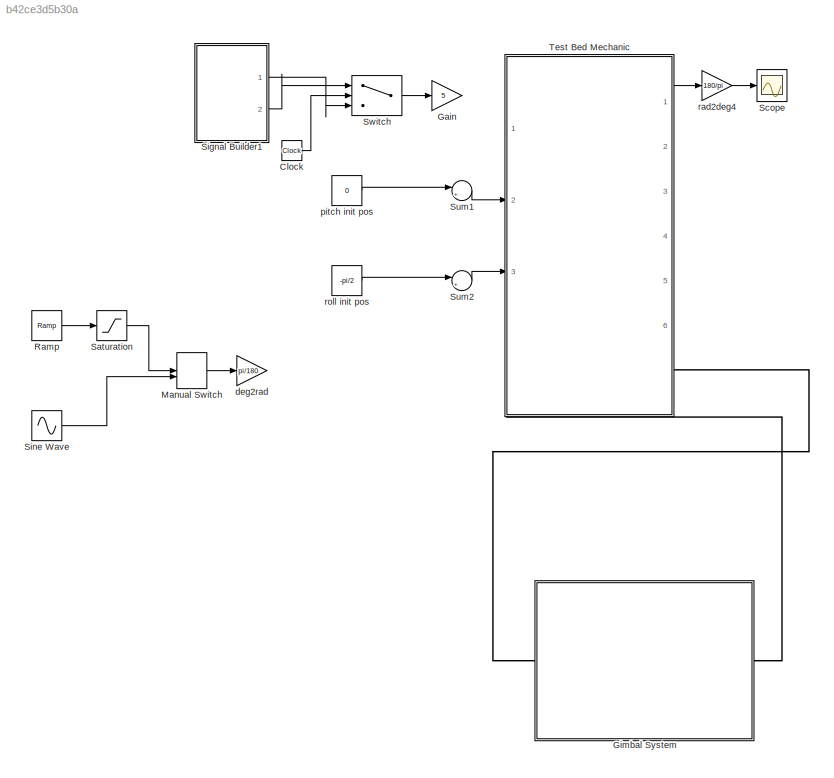
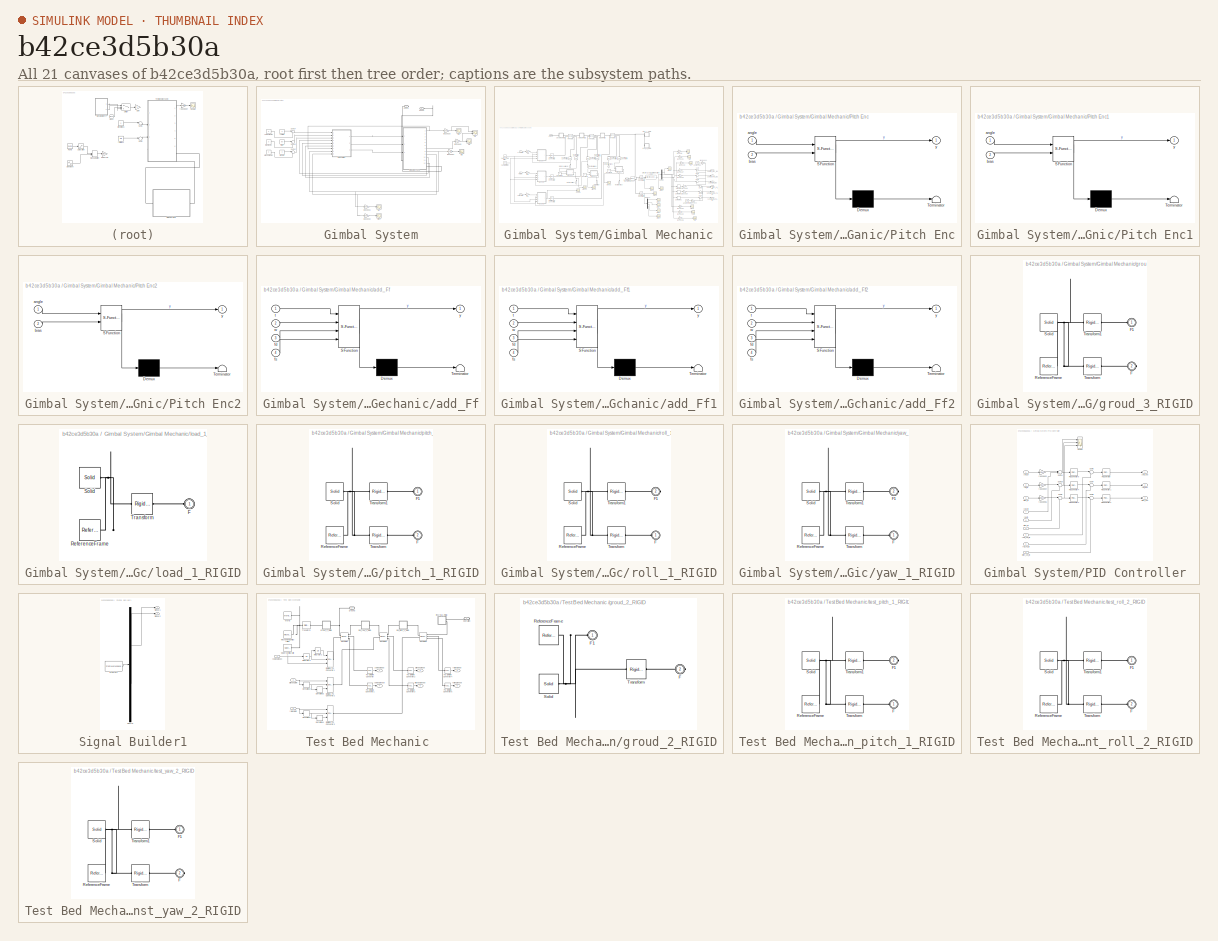
[diagram: thumbnail index - all 21 canvases of the model, root first then tree order]
MODEL slx_b42ce3d5b30a
KIND model
CONFIG AbsTol = auto
CONFIG FixedStep = 0.0005
CONFIG MaxStep = auto
CONFIG MinStep = auto
CONFIG RelTol = 1e-3
CONFIG SampleTimeConstraint = Unconstrained
CONFIG Solver = ode2
CONFIG SolverMode = Auto
CONFIG SolverName = ode2
CONFIG StartTime = 0.0
CONFIG StopTime = 10
BLOCK [Clock] Clock
BLOCK [Gain] Gain
  Gain = 5
  OutDataTypeStr = Inherit: Inherit via internal rule
  ParamDataTypeStr = Inherit: Inherit via internal rule
  SaturateOnIntegerOverflow = off
BLOCK [SubSystem] Gimbal System
  Ports = [0, 0, 0, 0, 0, 1, 1]
  RequestExecContextInheritance = off
  Variant = off
BLOCK [PMIOPort] Gimbal System/Conn1
  Port = 1
  Side = Right
BLOCK [PMIOPort] Gimbal System/Conn2
  Port = 2
  Side = Left
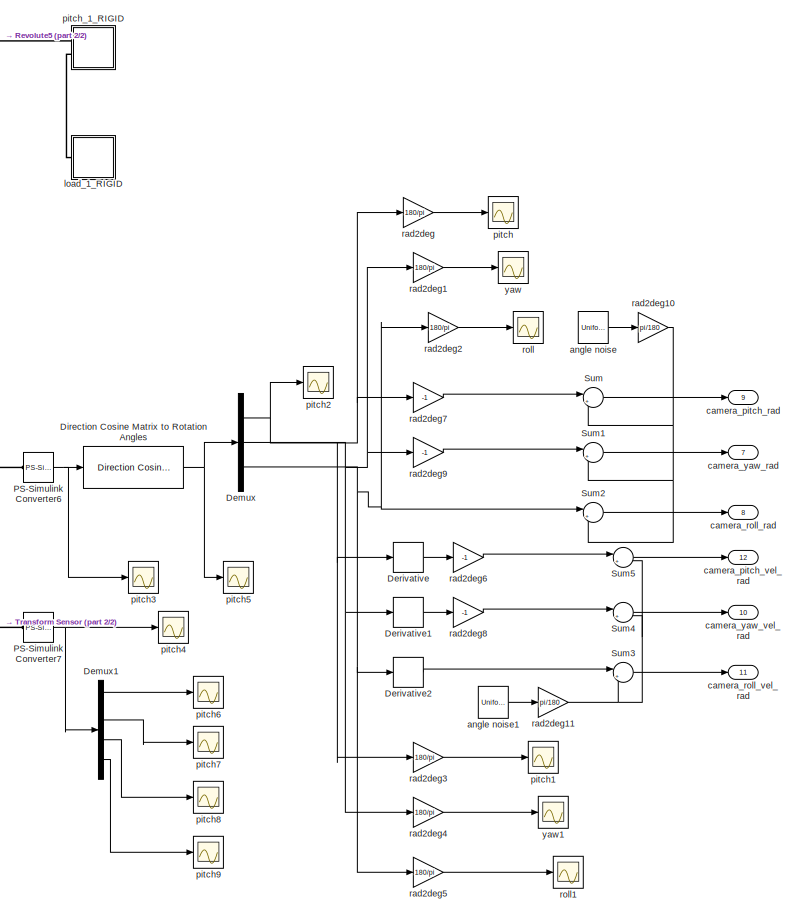
[diagram: Gimbal System/Gimbal Mechanic - part 1/2, right side, full height]
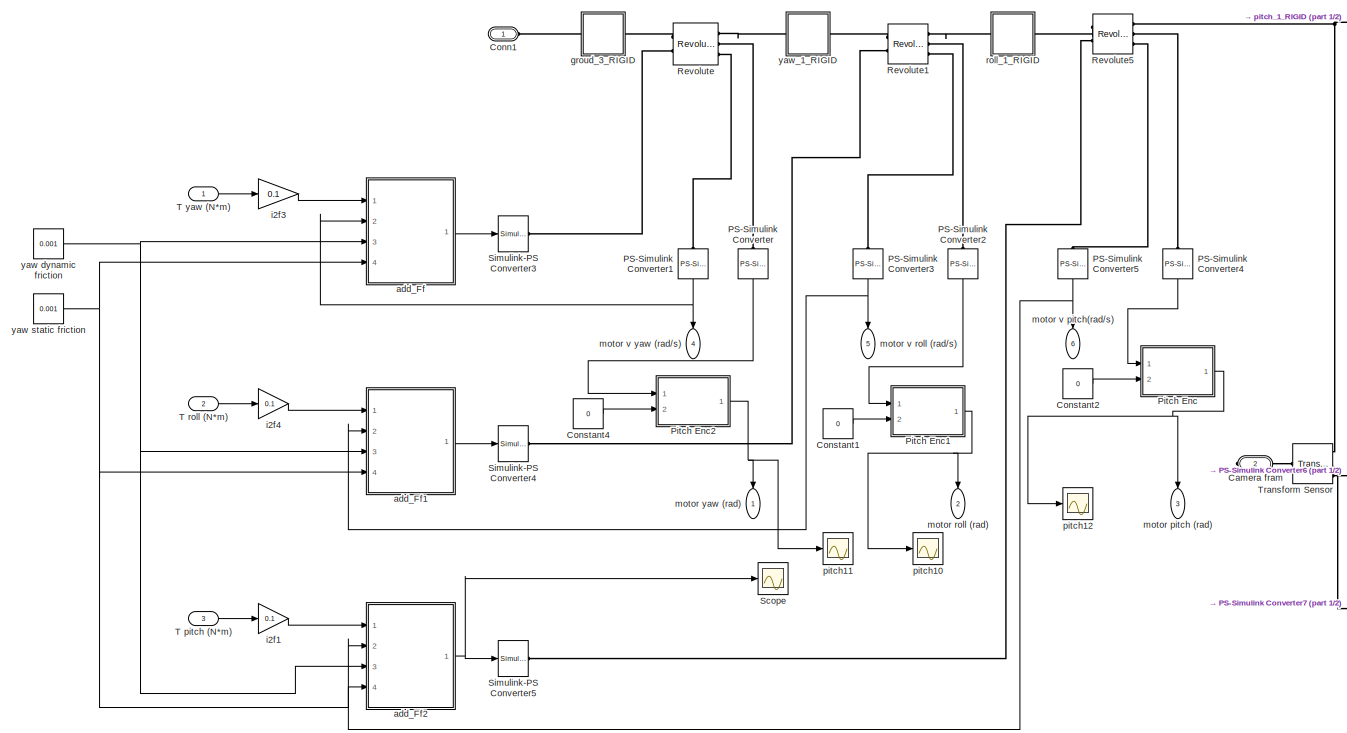
[diagram: Gimbal System/Gimbal Mechanic - part 2/2, left side, full height]
BLOCK [SubSystem] Gimbal System/Gimbal Mechanic
  Ports = [3, 12, 0, 0, 0, 1, 1]
  RequestExecContextInheritance = off
  Variant = off
BLOCK [PMIOPort] Gimbal System/Gimbal Mechanic/Camera fram
  Port = 2
  Side = Right
BLOCK [PMIOPort] Gimbal System/Gimbal Mechanic/Conn1
  Port = 1
  Side = Left
BLOCK [Constant] Gimbal System/Gimbal Mechanic/Constant1
  Value = 0
BLOCK [Constant] Gimbal System/Gimbal Mechanic/Constant2
  Value = 0
BLOCK [Constant] Gimbal System/Gimbal Mechanic/Constant4
  Value = 0
BLOCK [Demux] Gimbal System/Gimbal Mechanic/Demux
  DisplayOption = bar
  Outputs = 3
  Ports = [1, 3]
BLOCK [Demux] Gimbal System/Gimbal Mechanic/Demux1
  DisplayOption = bar
  Ports = [1, 4]
BLOCK [Derivative] Gimbal System/Gimbal Mechanic/Derivative
BLOCK [Derivative] Gimbal System/Gimbal Mechanic/Derivative1
BLOCK [Derivative] Gimbal System/Gimbal Mechanic/Derivative2
BLOCK [Reference] Gimbal System/Gimbal Mechanic/Direction Cosine Matrix to Rotation Angles  REF=aerolibtransform2/Direction Cosine Matrix
to Rotation Angles
  AttributesFormatString = Rotation Order: %<rotationOrder>
  Ports = [1, 1]
  SourceBlock = aerolibtransform2/Direction Cosine Matrix\nto Rotation Angles
  SourceType = DCM2Ang
BLOCK [Reference] Gimbal System/Gimbal Mechanic/PS-Simulink Converter  REF=nesl_utility/PS-Simulink
Converter
  Ports = [0, 1, 0, 0, 0, 1]
  SourceBlock = nesl_utility/PS-Simulink\nConverter
  SourceType = PS-Simulink\nConverter
BLOCK [Reference] Gimbal System/Gimbal Mechanic/PS-Simulink Converter1  REF=nesl_utility/PS-Simulink
Converter
  Ports = [0, 1, 0, 0, 0, 1]
  SourceBlock = nesl_utility/PS-Simulink\nConverter
  SourceType = PS-Simulink\nConverter
BLOCK [Reference] Gimbal System/Gimbal Mechanic/PS-Simulink Converter2  REF=nesl_utility/PS-Simulink
Converter
  Ports = [0, 1, 0, 0, 0, 1]
  SourceBlock = nesl_utility/PS-Simulink\nConverter
  SourceType = PS-Simulink\nConverter
BLOCK [Reference] Gimbal System/Gimbal Mechanic/PS-Simulink Converter3  REF=nesl_utility/PS-Simulink
Converter
  Ports = [0, 1, 0, 0, 0, 1]
  SourceBlock = nesl_utility/PS-Simulink\nConverter
  SourceType = PS-Simulink\nConverter
BLOCK [Reference] Gimbal System/Gimbal Mechanic/PS-Simulink Converter4  REF=nesl_utility/PS-Simulink
Converter
  Ports = [0, 1, 0, 0, 0, 1]
  SourceBlock = nesl_utility/PS-Simulink\nConverter
  SourceType = PS-Simulink\nConverter
BLOCK [Reference] Gimbal System/Gimbal Mechanic/PS-Simulink Converter5  REF=nesl_utility/PS-Simulink
Converter
  Ports = [0, 1, 0, 0, 0, 1]
  SourceBlock = nesl_utility/PS-Simulink\nConverter
  SourceType = PS-Simulink\nConverter
BLOCK [Reference] Gimbal System/Gimbal Mechanic/PS-Simulink Converter6  REF=nesl_utility/PS-Simulink
Converter
  Ports = [0, 1, 0, 0, 0, 1]
  SourceBlock = nesl_utility/PS-Simulink\nConverter
  SourceType = PS-Simulink\nConverter
BLOCK [Reference] Gimbal System/Gimbal Mechanic/PS-Simulink Converter7  REF=nesl_utility/PS-Simulink
Converter
  Ports = [0, 1, 0, 0, 0, 1]
  SourceBlock = nesl_utility/PS-Simulink\nConverter
  SourceType = PS-Simulink\nConverter
BLOCK [SubSystem] Gimbal System/Gimbal Mechanic/Pitch Enc
  ErrorFcn = Stateflow.Translate.translate
  PermitHierarchicalResolution = ExplicitOnly
  Ports = [2, 1]
  RequestExecContextInheritance = off
  SFBlockType = MATLAB Function
  TreatAsAtomicUnit = on
  Variant = off
BLOCK [Demux] Gimbal System/Gimbal Mechanic/Pitch Enc/ Demux 
  Outputs = 1
  Ports = [1, 1]
BLOCK [S-Function] Gimbal System/Gimbal Mechanic/Pitch Enc/ SFunction 
  EnableBusSupport = on
  FunctionName = sf_sfun
  PortCounts = [2 2]
  Ports = [2, 2]
  SFunctionDeploymentMode = off
  Tag = Stateflow S-Function test_gimbal_T3 4
BLOCK [Terminator] Gimbal System/Gimbal Mechanic/Pitch Enc/ Terminator 
BLOCK [Inport] Gimbal System/Gimbal Mechanic/Pitch Enc/angle
  IconDisplay = Port number
BLOCK [Inport] Gimbal System/Gimbal Mechanic/Pitch Enc/bias
  IconDisplay = Port number
  Port = 2
BLOCK [Outport] Gimbal System/Gimbal Mechanic/Pitch Enc/y
  IconDisplay = Port number
BLOCK [SubSystem] Gimbal System/Gimbal Mechanic/Pitch Enc1
  ErrorFcn = Stateflow.Translate.translate
  PermitHierarchicalResolution = ExplicitOnly
  Ports = [2, 1]
  RequestExecContextInheritance = off
  SFBlockType = MATLAB Function
  TreatAsAtomicUnit = on
  Variant = off
BLOCK [Demux] Gimbal System/Gimbal Mechanic/Pitch Enc1/ Demux 
  Outputs = 1
  Ports = [1, 1]
BLOCK [S-Function] Gimbal System/Gimbal Mechanic/Pitch Enc1/ SFunction 
  EnableBusSupport = on
  FunctionName = sf_sfun
  PortCounts = [2 2]
  Ports = [2, 2]
  SFunctionDeploymentMode = off
  Tag = Stateflow S-Function test_gimbal_T3 5
BLOCK [Terminator] Gimbal System/Gimbal Mechanic/Pitch Enc1/ Terminator 
BLOCK [Inport] Gimbal System/Gimbal Mechanic/Pitch Enc1/angle
  IconDisplay = Port number
BLOCK [Inport] Gimbal System/Gimbal Mechanic/Pitch Enc1/bias
  IconDisplay = Port number
  Port = 2
BLOCK [Outport] Gimbal System/Gimbal Mechanic/Pitch Enc1/y
  IconDisplay = Port number
BLOCK [SubSystem] Gimbal System/Gimbal Mechanic/Pitch Enc2
  ErrorFcn = Stateflow.Translate.translate
  PermitHierarchicalResolution = ExplicitOnly
  Ports = [2, 1]
  RequestExecContextInheritance = off
  SFBlockType = MATLAB Function
  TreatAsAtomicUnit = on
  Variant = off
BLOCK [Demux] Gimbal System/Gimbal Mechanic/Pitch Enc2/ Demux 
  Outputs = 1
  Ports = [1, 1]
BLOCK [S-Function] Gimbal System/Gimbal Mechanic/Pitch Enc2/ SFunction 
  EnableBusSupport = on
  FunctionName = sf_sfun
  PortCounts = [2 2]
  Ports = [2, 2]
  SFunctionDeploymentMode = off
  Tag = Stateflow S-Function test_gimbal_T3 6
BLOCK [Terminator] Gimbal System/Gimbal Mechanic/Pitch Enc2/ Terminator 
BLOCK [Inport] Gimbal System/Gimbal Mechanic/Pitch Enc2/angle
  IconDisplay = Port number
BLOCK [Inport] Gimbal System/Gimbal Mechanic/Pitch Enc2/bias
  IconDisplay = Port number
  Port = 2
BLOCK [Outport] Gimbal System/Gimbal Mechanic/Pitch Enc2/y
  IconDisplay = Port number
BLOCK [Reference] Gimbal System/Gimbal Mechanic/Revolute  REF=sm_lib/Joints/Revolute Joint
  Ports = [0, 0, 0, 0, 0, 2, 3]
  SourceBlock = sm_lib/Joints/Revolute Joint
  SourceType = Revolute Joint
BLOCK [Reference] Gimbal System/Gimbal Mechanic/Revolute1  REF=sm_lib/Joints/Revolute Joint
  Ports = [0, 0, 0, 0, 0, 2, 3]
  SourceBlock = sm_lib/Joints/Revolute Joint
  SourceType = Revolute Joint
BLOCK [Reference] Gimbal System/Gimbal Mechanic/Revolute5  REF=sm_lib/Joints/Revolute Joint
  Ports = [0, 0, 0, 0, 0, 2, 3]
  SourceBlock = sm_lib/Joints/Revolute Joint
  SourceType = Revolute Joint
BLOCK [Scope] Gimbal System/Gimbal Mechanic/Scope
  Ports = [1]
  ScopeSpecificationString = C++SS(StrPVP('SaveName','ScopeData2'),StrPVP('LimitDataPoints','on'),StrPVP('DataFormat','Array'),StrPVP('Decimation','1'),StrPVP('BlockParamSampleInput','off'))
BLOCK [Reference] Gimbal System/Gimbal Mechanic/Simulink-PS Converter3  REF=nesl_utility/Simulink-PS
Converter
  Ports = [1, 0, 0, 0, 0, 0, 1]
  SourceBlock = nesl_utility/Simulink-PS\nConverter
  SourceType = Simulink-PS\nConverter
BLOCK [Reference] Gimbal System/Gimbal Mechanic/Simulink-PS Converter4  REF=nesl_utility/Simulink-PS
Converter
  Ports = [1, 0, 0, 0, 0, 0, 1]
  SourceBlock = nesl_utility/Simulink-PS\nConverter
  SourceType = Simulink-PS\nConverter
BLOCK [Reference] Gimbal System/Gimbal Mechanic/Simulink-PS Converter5  REF=nesl_utility/Simulink-PS
Converter
  Ports = [1, 0, 0, 0, 0, 0, 1]
  SourceBlock = nesl_utility/Simulink-PS\nConverter
  SourceType = Simulink-PS\nConverter
BLOCK [Sum] Gimbal System/Gimbal Mechanic/Sum
  IconShape = round
  InputSameDT = off
  Inputs = |++
  OutDataTypeStr = Inherit: Inherit via internal rule
  Ports = [2, 1]
  SaturateOnIntegerOverflow = off
BLOCK [Sum] Gimbal System/Gimbal Mechanic/Sum1
  IconShape = round
  InputSameDT = off
  Inputs = |++
  OutDataTypeStr = Inherit: Inherit via internal rule
  Ports = [2, 1]
  SaturateOnIntegerOverflow = off
BLOCK [Sum] Gimbal System/Gimbal Mechanic/Sum2
  IconShape = round
  InputSameDT = off
  Inputs = |++
  OutDataTypeStr = Inherit: Inherit via internal rule
  Ports = [2, 1]
  SaturateOnIntegerOverflow = off
BLOCK [Sum] Gimbal System/Gimbal Mechanic/Sum3
  IconShape = round
  InputSameDT = off
  Inputs = |++
  OutDataTypeStr = Inherit: Inherit via internal rule
  Ports = [2, 1]
  SaturateOnIntegerOverflow = off
BLOCK [Sum] Gimbal System/Gimbal Mechanic/Sum4
  IconShape = round
  InputSameDT = off
  Inputs = |++
  OutDataTypeStr = Inherit: Inherit via internal rule
  Ports = [2, 1]
  SaturateOnIntegerOverflow = off
BLOCK [Sum] Gimbal System/Gimbal Mechanic/Sum5
  IconShape = round
  InputSameDT = off
  Inputs = |++
  OutDataTypeStr = Inherit: Inherit via internal rule
  Ports = [2, 1]
  SaturateOnIntegerOverflow = off
BLOCK [Inport] Gimbal System/Gimbal Mechanic/T pitch (N*m)
  IconDisplay = Port number
  Port = 3
BLOCK [Inport] Gimbal System/Gimbal Mechanic/T roll (N*m)
  IconDisplay = Port number
  Port = 2
BLOCK [Inport] Gimbal System/Gimbal Mechanic/T yaw (N*m)
  IconDisplay = Port number
BLOCK [Reference] Gimbal System/Gimbal Mechanic/Transform Sensor  REF=sm_lib/Frames and
Transforms/Transform
Sensor
  Ports = [0, 0, 0, 0, 0, 1, 4]
  SourceBlock = sm_lib/Frames and\nTransforms/Transform\nSensor
  SourceType = Transform\nSensor
BLOCK [SubSystem] Gimbal System/Gimbal Mechanic/add_Ff
  ErrorFcn = Stateflow.Translate.translate
  PermitHierarchicalResolution = ExplicitOnly
  Ports = [4, 1]
  RequestExecContextInheritance = off
  SFBlockType = MATLAB Function
  TreatAsAtomicUnit = on
  Variant = off
BLOCK [Demux] Gimbal System/Gimbal Mechanic/add_Ff/ Demux 
  Outputs = 1
  Ports = [1, 1]
BLOCK [S-Function] Gimbal System/Gimbal Mechanic/add_Ff/ SFunction 
  EnableBusSupport = on
  FunctionName = sf_sfun
  PortCounts = [4 2]
  Ports = [4, 2]
  SFunctionDeploymentMode = off
  Tag = Stateflow S-Function test_gimbal_T3 2
BLOCK [Terminator] Gimbal System/Gimbal Mechanic/add_Ff/ Terminator 
BLOCK [Inport] Gimbal System/Gimbal Mechanic/add_Ff/fd
  IconDisplay = Port number
  Port = 3
BLOCK [Inport] Gimbal System/Gimbal Mechanic/add_Ff/fs
  IconDisplay = Port number
  Port = 4
BLOCK [Inport] Gimbal System/Gimbal Mechanic/add_Ff/t
  IconDisplay = Port number
BLOCK [Inport] Gimbal System/Gimbal Mechanic/add_Ff/w
  IconDisplay = Port number
  Port = 2
BLOCK [Outport] Gimbal System/Gimbal Mechanic/add_Ff/y
  IconDisplay = Port number
BLOCK [SubSystem] Gimbal System/Gimbal Mechanic/add_Ff1
  ErrorFcn = Stateflow.Translate.translate
  PermitHierarchicalResolution = ExplicitOnly
  Ports = [4, 1]
  RequestExecContextInheritance = off
  SFBlockType = MATLAB Function
  TreatAsAtomicUnit = on
  Variant = off
BLOCK [Demux] Gimbal System/Gimbal Mechanic/add_Ff1/ Demux 
  Outputs = 1
  Ports = [1, 1]
BLOCK [S-Function] Gimbal System/Gimbal Mechanic/add_Ff1/ SFunction 
  EnableBusSupport = on
  FunctionName = sf_sfun
  PortCounts = [4 2]
  Ports = [4, 2]
  SFunctionDeploymentMode = off
  Tag = Stateflow S-Function test_gimbal_T3 1
BLOCK [Terminator] Gimbal System/Gimbal Mechanic/add_Ff1/ Terminator 
BLOCK [Inport] Gimbal System/Gimbal Mechanic/add_Ff1/fd
  IconDisplay = Port number
  Port = 3
BLOCK [Inport] Gimbal System/Gimbal Mechanic/add_Ff1/fs
  IconDisplay = Port number
  Port = 4
BLOCK [Inport] Gimbal System/Gimbal Mechanic/add_Ff1/t
  IconDisplay = Port number
BLOCK [Inport] Gimbal System/Gimbal Mechanic/add_Ff1/w
  IconDisplay = Port number
  Port = 2
BLOCK [Outport] Gimbal System/Gimbal Mechanic/add_Ff1/y
  IconDisplay = Port number
BLOCK [SubSystem] Gimbal System/Gimbal Mechanic/add_Ff2
  ErrorFcn = Stateflow.Translate.translate
  PermitHierarchicalResolution = ExplicitOnly
  Ports = [4, 1]
  RequestExecContextInheritance = off
  SFBlockType = MATLAB Function
  TreatAsAtomicUnit = on
  Variant = off
BLOCK [Demux] Gimbal System/Gimbal Mechanic/add_Ff2/ Demux 
  Outputs = 1
  Ports = [1, 1]
BLOCK [S-Function] Gimbal System/Gimbal Mechanic/add_Ff2/ SFunction 
  EnableBusSupport = on
  FunctionName = sf_sfun
  PortCounts = [4 2]
  Ports = [4, 2]
  SFunctionDeploymentMode = off
  Tag = Stateflow S-Function test_gimbal_T3 3
BLOCK [Terminator] Gimbal System/Gimbal Mechanic/add_Ff2/ Terminator 
BLOCK [Inport] Gimbal System/Gimbal Mechanic/add_Ff2/fd
  IconDisplay = Port number
  Port = 3
BLOCK [Inport] Gimbal System/Gimbal Mechanic/add_Ff2/fs
  IconDisplay = Port number
  Port = 4
BLOCK [Inport] Gimbal System/Gimbal Mechanic/add_Ff2/t
  IconDisplay = Port number
BLOCK [Inport] Gimbal System/Gimbal Mechanic/add_Ff2/w
  IconDisplay = Port number
  Port = 2
BLOCK [Outport] Gimbal System/Gimbal Mechanic/add_Ff2/y
  IconDisplay = Port number
BLOCK [UniformRandomNumber] Gimbal System/Gimbal Mechanic/angle noise
  Maximum = 0.02
  Minimum = -0.02
  SampleTime = 0.001
BLOCK [UniformRandomNumber] Gimbal System/Gimbal Mechanic/angle noise1
  Maximum = 0.07
  Minimum = -0.07
  SampleTime = 0.001
BLOCK [Outport] Gimbal System/Gimbal Mechanic/camera_pitch_rad
  IconDisplay = Port number
  Port = 9
BLOCK [Outport] Gimbal System/Gimbal Mechanic/camera_pitch_vel_rad
  IconDisplay = Port number
  Port = 12
BLOCK [Outport] Gimbal System/Gimbal Mechanic/camera_roll_rad
  IconDisplay = Port number
  Port = 8
BLOCK [Outport] Gimbal System/Gimbal Mechanic/camera_roll_vel_rad
  IconDisplay = Port number
  Port = 11
BLOCK [Outport] Gimbal System/Gimbal Mechanic/camera_yaw_rad
  IconDisplay = Port number
  Port = 7
BLOCK [Outport] Gimbal System/Gimbal Mechanic/camera_yaw_vel_rad
  IconDisplay = Port number
  Port = 10
BLOCK [SubSystem] Gimbal System/Gimbal Mechanic/groud_3_RIGID
  Ports = [0, 0, 0, 0, 0, 1, 1]
  RequestExecContextInheritance = off
  Variant = off
BLOCK [PMIOPort] Gimbal System/Gimbal Mechanic/groud_3_RIGID/F
  Port = 2
  Side = Right
BLOCK [PMIOPort] Gimbal System/Gimbal Mechanic/groud_3_RIGID/F1
  Port = 1
  Side = Left
BLOCK [Reference] Gimbal System/Gimbal Mechanic/groud_3_RIGID/ReferenceFrame  REF=sm_lib/Frames and
Transforms/Reference
Frame
  Ports = [0, 0, 0, 0, 0, 0, 1]
  SourceBlock = sm_lib/Frames and\nTransforms/Reference\nFrame
  SourceType = Reference\nFrame
BLOCK [Reference] Gimbal System/Gimbal Mechanic/groud_3_RIGID/Solid  REF=sm_lib/Body Elements/Solid
  Ports = [0, 0, 0, 0, 0, 0, 1]
  SourceBlock = sm_lib/Body Elements/Solid
  SourceType = Solid
BLOCK [Reference] Gimbal System/Gimbal Mechanic/groud_3_RIGID/Transform  REF=sm_lib/Frames and
Transforms/Rigid
Transform
  Ports = [0, 0, 0, 0, 0, 1, 1]
  SourceBlock = sm_lib/Frames and\nTransforms/Rigid\nTransform
  SourceType = Rigid\nTransform
BLOCK [Reference] Gimbal System/Gimbal Mechanic/groud_3_RIGID/Transform1  REF=sm_lib/Frames and
Transforms/Rigid
Transform
  Ports = [0, 0, 0, 0, 0, 1, 1]
  SourceBlock = sm_lib/Frames and\nTransforms/Rigid\nTransform
  SourceType = Rigid\nTransform
BLOCK [Gain] Gimbal System/Gimbal Mechanic/i2f1
  Gain = 0.1
  OutDataTypeStr = Inherit: Inherit via internal rule
  ParamDataTypeStr = Inherit: Inherit via internal rule
  SaturateOnIntegerOverflow = off
BLOCK [Gain] Gimbal System/Gimbal Mechanic/i2f3
  Gain = 0.1
  OutDataTypeStr = Inherit: Inherit via internal rule
  ParamDataTypeStr = Inherit: Inherit via internal rule
  SaturateOnIntegerOverflow = off
BLOCK [Gain] Gimbal System/Gimbal Mechanic/i2f4
  Gain = 0.1
  OutDataTypeStr = Inherit: Inherit via internal rule
  ParamDataTypeStr = Inherit: Inherit via internal rule
  SaturateOnIntegerOverflow = off
BLOCK [SubSystem] Gimbal System/Gimbal Mechanic/load_1_RIGID
  Ports = [0, 0, 0, 0, 0, 1]
  RequestExecContextInheritance = off
  Variant = off
BLOCK [PMIOPort] Gimbal System/Gimbal Mechanic/load_1_RIGID/F
  Port = 1
  Side = Left
BLOCK [Reference] Gimbal System/Gimbal Mechanic/load_1_RIGID/ReferenceFrame  REF=sm_lib/Frames and
Transforms/Reference
Frame
  Ports = [0, 0, 0, 0, 0, 0, 1]
  SourceBlock = sm_lib/Frames and\nTransforms/Reference\nFrame
  SourceType = Reference\nFrame
BLOCK [Reference] Gimbal System/Gimbal Mechanic/load_1_RIGID/Solid  REF=sm_lib/Body Elements/Solid
  Ports = [0, 0, 0, 0, 0, 0, 1]
  SourceBlock = sm_lib/Body Elements/Solid
  SourceType = Solid
BLOCK [Reference] Gimbal System/Gimbal Mechanic/load_1_RIGID/Transform  REF=sm_lib/Frames and
Transforms/Rigid
Transform
  Ports = [0, 0, 0, 0, 0, 1, 1]
  SourceBlock = sm_lib/Frames and\nTransforms/Rigid\nTransform
  SourceType = Rigid\nTransform
BLOCK [Outport] Gimbal System/Gimbal Mechanic/motor pitch (rad)
  IconDisplay = Port number
  Port = 3
BLOCK [Outport] Gimbal System/Gimbal Mechanic/motor roll (rad)
  IconDisplay = Port number
  Port = 2
BLOCK [Outport] Gimbal System/Gimbal Mechanic/motor v pitch(rad//s)
  IconDisplay = Port number
  Port = 6
BLOCK [Outport] Gimbal System/Gimbal Mechanic/motor v roll (rad//s)
  IconDisplay = Port number
  Port = 5
BLOCK [Outport] Gimbal System/Gimbal Mechanic/motor v yaw (rad//s)
  IconDisplay = Port number
  Port = 4
BLOCK [Outport] Gimbal System/Gimbal Mechanic/motor yaw (rad)
  IconDisplay = Port number
BLOCK [Scope] Gimbal System/Gimbal Mechanic/pitch
  Ports = [1]
  ScopeSpecificationString = Simulink.scopes.TimeScopeBlockCfg('CurrentConfiguration', extmgr.ConfigurationSet(extmgr.Configuration('Core','General UI',true),extmgr.Configuration('Core','Source UI',true),extmgr.Configuration('Sources','WiredSimulink',true),extmgr.Configuration('Visuals','Time Domain',true,'SerializedDisplays',{struct('MinYLimReal','81.41451','MaxYLimReal','90.95805','YLabelReal','','MinYLimMag','81.41451','Ma...<+1362ch>
BLOCK [Scope] Gimbal System/Gimbal Mechanic/pitch1
  Ports = [1]
  ScopeSpecificationString = Simulink.scopes.TimeScopeBlockCfg('CurrentConfiguration', extmgr.ConfigurationSet(extmgr.Configuration('Core','General UI',true),extmgr.Configuration('Core','Source UI',true),extmgr.Configuration('Sources','WiredSimulink',true,'DataLoggingVariableName','ScopeData3'),extmgr.Configuration('Visuals','Time Domain',true,'SerializedDisplays',{struct('MinYLimReal','81.40694','MaxYLimReal','90.95775','YLa...<+1402ch>
BLOCK [Scope] Gimbal System/Gimbal Mechanic/pitch10
  Ports = [1]
  ScopeSpecificationString = Simulink.scopes.TimeScopeBlockCfg('CurrentConfiguration', extmgr.ConfigurationSet(extmgr.Configuration('Core','General UI',true),extmgr.Configuration('Core','Source UI',true),extmgr.Configuration('Sources','WiredSimulink',true,'DataLoggingVariableName','ScopeData1'),extmgr.Configuration('Visuals','Time Domain',true,'SerializedDisplays',{struct('MinYLimReal','-1.61767','MaxYLimReal','-1.15656','YLa...<+1400ch>
BLOCK [Scope] Gimbal System/Gimbal Mechanic/pitch11
  Ports = [1]
  ScopeSpecificationString = Simulink.scopes.TimeScopeBlockCfg('CurrentConfiguration', extmgr.ConfigurationSet(extmgr.Configuration('Core','General UI',true),extmgr.Configuration('Core','Source UI',true),extmgr.Configuration('Sources','WiredSimulink',true,'DataLoggingVariableName','ScopeData2'),extmgr.Configuration('Visuals','Time Domain',true,'SerializedDisplays',{struct('MinYLimReal','-0.05037','MaxYLimReal','0.41463','YLab...<+1392ch>
BLOCK [Scope] Gimbal System/Gimbal Mechanic/pitch12
  Ports = [1]
  ScopeSpecificationString = Simulink.scopes.TimeScopeBlockCfg('CurrentConfiguration', extmgr.ConfigurationSet(extmgr.Configuration('Core','General UI',true),extmgr.Configuration('Core','Source UI',true),extmgr.Configuration('Sources','WiredSimulink',true,'DataLoggingVariableName','ScopeData3'),extmgr.Configuration('Visuals','Time Domain',true,'SerializedDisplays',{struct('MinYLimReal','-3.92429','MaxYLimReal','3.9265','YLabe...<+1412ch>
BLOCK [Scope] Gimbal System/Gimbal Mechanic/pitch2
  Ports = [1]
  ScopeSpecificationString = C++SS(StrPVP('SaveName','ScopeData1'),StrPVP('LimitDataPoints','on'),StrPVP('DataFormat','Array'),StrPVP('Decimation','1'),StrPVP('BlockParamSampleInput','off'))
BLOCK [Scope] Gimbal System/Gimbal Mechanic/pitch3
  Ports = [1]
  ScopeSpecificationString = Simulink.scopes.TimeScopeBlockCfg('CurrentConfiguration', extmgr.ConfigurationSet(extmgr.Configuration('Core','General UI',true),extmgr.Configuration('Core','Source UI',true),extmgr.Configuration('Sources','WiredSimulink',true,'DataLoggingVariableName','ScopeData5'),extmgr.Configuration('Visuals','Time Domain',true,'SerializedDisplays',{struct('MinYLimReal','-1.20803','MaxYLimReal','1.20212','YLab...<+1627ch>
BLOCK [Scope] Gimbal System/Gimbal Mechanic/pitch4
  Ports = [1]
  ScopeSpecificationString = Simulink.scopes.TimeScopeBlockCfg('CurrentConfiguration', extmgr.ConfigurationSet(extmgr.Configuration('Core','General UI',true),extmgr.Configuration('Core','Source UI',true),extmgr.Configuration('Sources','WiredSimulink',true,'DataLoggingVariableName','ScopeData1'),extmgr.Configuration('Visuals','Time Domain',true,'SerializedDisplays',{struct('MinYLimReal','-0.86868','MaxYLimReal','0.77377','YLab...<+1492ch>
BLOCK [Scope] Gimbal System/Gimbal Mechanic/pitch5
  Ports = [1]
  ScopeSpecificationString = Simulink.scopes.TimeScopeBlockCfg('CurrentConfiguration', extmgr.ConfigurationSet(extmgr.Configuration('Core','General UI',true),extmgr.Configuration('Core','Source UI',true),extmgr.Configuration('Sources','WiredSimulink',true,'DataLoggingVariableName','ScopeData7'),extmgr.Configuration('Visuals','Time Domain',true,'SerializedDisplays',{struct('MinYLimReal','-3.9133','MaxYLimReal','3.9139','YLabel...<+1564ch>
BLOCK [Scope] Gimbal System/Gimbal Mechanic/pitch6
  Ports = [1]
  ScopeSpecificationString = Simulink.scopes.TimeScopeBlockCfg('CurrentConfiguration', extmgr.ConfigurationSet(extmgr.Configuration('Core','General UI',true),extmgr.Configuration('Core','Source UI',true),extmgr.Configuration('Sources','WiredSimulink',true,'DataLoggingVariableName','ScopeData2'),extmgr.Configuration('Visuals','Time Domain',true,'SerializedDisplays',{struct('MinYLimReal','-0.57515','MaxYLimReal','-0.48237','YLa...<+1397ch>
BLOCK [Scope] Gimbal System/Gimbal Mechanic/pitch7
  Ports = [1]
  ScopeSpecificationString = Simulink.scopes.TimeScopeBlockCfg('CurrentConfiguration', extmgr.ConfigurationSet(extmgr.Configuration('Core','General UI',true),extmgr.Configuration('Core','Source UI',true),extmgr.Configuration('Sources','WiredSimulink',true,'DataLoggingVariableName','ScopeData3'),extmgr.Configuration('Visuals','Time Domain',true,'SerializedDisplays',{struct('MinYLimReal','-0.51243','MaxYLimReal','-0.47039','YLa...<+1397ch>
BLOCK [Scope] Gimbal System/Gimbal Mechanic/pitch8
  Ports = [1]
  ScopeSpecificationString = Simulink.scopes.TimeScopeBlockCfg('CurrentConfiguration', extmgr.ConfigurationSet(extmgr.Configuration('Core','General UI',true),extmgr.Configuration('Core','Source UI',true),extmgr.Configuration('Sources','WiredSimulink',true,'DataLoggingVariableName','ScopeData4'),extmgr.Configuration('Visuals','Time Domain',true,'SerializedDisplays',{struct('MinYLimReal','-0.75791','MaxYLimReal','-0.22314','YLa...<+1397ch>
BLOCK [Scope] Gimbal System/Gimbal Mechanic/pitch9
  Ports = [1]
  ScopeSpecificationString = Simulink.scopes.TimeScopeBlockCfg('CurrentConfiguration', extmgr.ConfigurationSet(extmgr.Configuration('Core','General UI',true),extmgr.Configuration('Core','Source UI',true),extmgr.Configuration('Sources','WiredSimulink',true,'DataLoggingVariableName','ScopeData5'),extmgr.Configuration('Visuals','Time Domain',true,'SerializedDisplays',{struct('MinYLimReal','-0.00702','MaxYLimReal','0.67803','YLab...<+1395ch>
BLOCK [SubSystem] Gimbal System/Gimbal Mechanic/pitch_1_RIGID
  Ports = [0, 0, 0, 0, 0, 2]
  RequestExecContextInheritance = off
  Variant = off
BLOCK [PMIOPort] Gimbal System/Gimbal Mechanic/pitch_1_RIGID/F
  Port = 2
  Side = Left
BLOCK [PMIOPort] Gimbal System/Gimbal Mechanic/pitch_1_RIGID/F1
  Port = 1
  Side = Left
BLOCK [Reference] Gimbal System/Gimbal Mechanic/pitch_1_RIGID/ReferenceFrame  REF=sm_lib/Frames and
Transforms/Reference
Frame
  Ports = [0, 0, 0, 0, 0, 0, 1]
  SourceBlock = sm_lib/Frames and\nTransforms/Reference\nFrame
  SourceType = Reference\nFrame
BLOCK [Reference] Gimbal System/Gimbal Mechanic/pitch_1_RIGID/Solid  REF=sm_lib/Body Elements/Solid
  Ports = [0, 0, 0, 0, 0, 0, 1]
  SourceBlock = sm_lib/Body Elements/Solid
  SourceType = Solid
BLOCK [Reference] Gimbal System/Gimbal Mechanic/pitch_1_RIGID/Transform  REF=sm_lib/Frames and
Transforms/Rigid
Transform
  Ports = [0, 0, 0, 0, 0, 1, 1]
  SourceBlock = sm_lib/Frames and\nTransforms/Rigid\nTransform
  SourceType = Rigid\nTransform
BLOCK [Reference] Gimbal System/Gimbal Mechanic/pitch_1_RIGID/Transform1  REF=sm_lib/Frames and
Transforms/Rigid
Transform
  Ports = [0, 0, 0, 0, 0, 1, 1]
  SourceBlock = sm_lib/Frames and\nTransforms/Rigid\nTransform
  SourceType = Rigid\nTransform
BLOCK [Gain] Gimbal System/Gimbal Mechanic/rad2deg
  Gain = 180/pi
  OutDataTypeStr = Inherit: Inherit via internal rule
  ParamDataTypeStr = Inherit: Inherit via internal rule
  SaturateOnIntegerOverflow = off
BLOCK [Gain] Gimbal System/Gimbal Mechanic/rad2deg1
  Gain = 180/pi
  OutDataTypeStr = Inherit: Inherit via internal rule
  ParamDataTypeStr = Inherit: Inherit via internal rule
  SaturateOnIntegerOverflow = off
BLOCK [Gain] Gimbal System/Gimbal Mechanic/rad2deg10
  Gain = pi/180
  OutDataTypeStr = Inherit: Inherit via internal rule
  ParamDataTypeStr = Inherit: Inherit via internal rule
  SaturateOnIntegerOverflow = off
BLOCK [Gain] Gimbal System/Gimbal Mechanic/rad2deg11
  Gain = pi/180
  OutDataTypeStr = Inherit: Inherit via internal rule
  ParamDataTypeStr = Inherit: Inherit via internal rule
  SaturateOnIntegerOverflow = off
BLOCK [Gain] Gimbal System/Gimbal Mechanic/rad2deg2
  Gain = 180/pi
  OutDataTypeStr = Inherit: Inherit via internal rule
  ParamDataTypeStr = Inherit: Inherit via internal rule
  SaturateOnIntegerOverflow = off
BLOCK [Gain] Gimbal System/Gimbal Mechanic/rad2deg3
  Gain = 180/pi
  OutDataTypeStr = Inherit: Inherit via internal rule
  ParamDataTypeStr = Inherit: Inherit via internal rule
  SaturateOnIntegerOverflow = off
BLOCK [Gain] Gimbal System/Gimbal Mechanic/rad2deg4
  Gain = 180/pi
  OutDataTypeStr = Inherit: Inherit via internal rule
  ParamDataTypeStr = Inherit: Inherit via internal rule
  SaturateOnIntegerOverflow = off
BLOCK [Gain] Gimbal System/Gimbal Mechanic/rad2deg5
  Gain = 180/pi
  OutDataTypeStr = Inherit: Inherit via internal rule
  ParamDataTypeStr = Inherit: Inherit via internal rule
  SaturateOnIntegerOverflow = off
BLOCK [Gain] Gimbal System/Gimbal Mechanic/rad2deg6
  Gain = -1
  OutDataTypeStr = Inherit: Inherit via internal rule
  ParamDataTypeStr = Inherit: Inherit via internal rule
  SaturateOnIntegerOverflow = off
BLOCK [Gain] Gimbal System/Gimbal Mechanic/rad2deg7
  Gain = -1
  OutDataTypeStr = Inherit: Inherit via internal rule
  ParamDataTypeStr = Inherit: Inherit via internal rule
  SaturateOnIntegerOverflow = off
BLOCK [Gain] Gimbal System/Gimbal Mechanic/rad2deg8
  Gain = -1
  OutDataTypeStr = Inherit: Inherit via internal rule
  ParamDataTypeStr = Inherit: Inherit via internal rule
  SaturateOnIntegerOverflow = off
BLOCK [Gain] Gimbal System/Gimbal Mechanic/rad2deg9
  Gain = -1
  OutDataTypeStr = Inherit: Inherit via internal rule
  ParamDataTypeStr = Inherit: Inherit via internal rule
  SaturateOnIntegerOverflow = off
BLOCK [Scope] Gimbal System/Gimbal Mechanic/roll
  Ports = [1]
  ScopeSpecificationString = Simulink.scopes.TimeScopeBlockCfg('CurrentConfiguration', extmgr.ConfigurationSet(extmgr.Configuration('Core','General UI',true),extmgr.Configuration('Core','Source UI',true),extmgr.Configuration('Sources','WiredSimulink',true,'DataLoggingVariableName','ScopeData2'),extmgr.Configuration('Visuals','Time Domain',true,'SerializedDisplays',{struct('MinYLimReal','-92.78203','MaxYLimReal','-65.23724','Y...<+1404ch>
BLOCK [Scope] Gimbal System/Gimbal Mechanic/roll1
  Ports = [1]
  ScopeSpecificationString = Simulink.scopes.TimeScopeBlockCfg('CurrentConfiguration', extmgr.ConfigurationSet(extmgr.Configuration('Core','General UI',true),extmgr.Configuration('Core','Source UI',true),extmgr.Configuration('Sources','WiredSimulink',true,'DataLoggingVariableName','ScopeData4'),extmgr.Configuration('Visuals','Time Domain',true,'SerializedDisplays',{struct('MinYLimReal','-90.00000000000027','MaxYLimReal','-89....<+1476ch>
BLOCK [SubSystem] Gimbal System/Gimbal Mechanic/roll_1_RIGID
  Ports = [0, 0, 0, 0, 0, 1, 1]
  RequestExecContextInheritance = off
  Variant = off
BLOCK [PMIOPort] Gimbal System/Gimbal Mechanic/roll_1_RIGID/F
  Port = 1
  Side = Left
BLOCK [PMIOPort] Gimbal System/Gimbal Mechanic/roll_1_RIGID/F1
  Port = 2
  Side = Right
BLOCK [Reference] Gimbal System/Gimbal Mechanic/roll_1_RIGID/ReferenceFrame  REF=sm_lib/Frames and
Transforms/Reference
Frame
  Ports = [0, 0, 0, 0, 0, 0, 1]
  SourceBlock = sm_lib/Frames and\nTransforms/Reference\nFrame
  SourceType = Reference\nFrame
BLOCK [Reference] Gimbal System/Gimbal Mechanic/roll_1_RIGID/Solid  REF=sm_lib/Body Elements/Solid
  Ports = [0, 0, 0, 0, 0, 0, 1]
  SourceBlock = sm_lib/Body Elements/Solid
  SourceType = Solid
BLOCK [Reference] Gimbal System/Gimbal Mechanic/roll_1_RIGID/Transform  REF=sm_lib/Frames and
Transforms/Rigid
Transform
  Ports = [0, 0, 0, 0, 0, 1, 1]
  SourceBlock = sm_lib/Frames and\nTransforms/Rigid\nTransform
  SourceType = Rigid\nTransform
BLOCK [Reference] Gimbal System/Gimbal Mechanic/roll_1_RIGID/Transform1  REF=sm_lib/Frames and
Transforms/Rigid
Transform
  Ports = [0, 0, 0, 0, 0, 1, 1]
  SourceBlock = sm_lib/Frames and\nTransforms/Rigid\nTransform
  SourceType = Rigid\nTransform
BLOCK [Scope] Gimbal System/Gimbal Mechanic/yaw
  Ports = [1]
  ScopeSpecificationString = Simulink.scopes.TimeScopeBlockCfg('CurrentConfiguration', extmgr.ConfigurationSet(extmgr.Configuration('Core','General UI',true),extmgr.Configuration('Core','Source UI',true),extmgr.Configuration('Sources','WiredSimulink',true,'DataLoggingVariableName','ScopeData1'),extmgr.Configuration('Visuals','Time Domain',true,'SerializedDisplays',{struct('MinYLimReal','-92.02498','MaxYLimReal','28.22089','YL...<+1402ch>
BLOCK [Constant] Gimbal System/Gimbal Mechanic/yaw dynamic friction
  Value = 0.001
BLOCK [Constant] Gimbal System/Gimbal Mechanic/yaw static friction
  Value = 0.001
BLOCK [Scope] Gimbal System/Gimbal Mechanic/yaw1
  Ports = [1]
  ScopeSpecificationString = Simulink.scopes.TimeScopeBlockCfg('CurrentConfiguration', extmgr.ConfigurationSet(extmgr.Configuration('Core','General UI',true),extmgr.Configuration('Core','Source UI',true),extmgr.Configuration('Sources','WiredSimulink',true,'DataLoggingVariableName','ScopeData5'),extmgr.Configuration('Visuals','Time Domain',true,'SerializedDisplays',{struct('MinYLimReal','-2.02539','MaxYLimReal','18.22094','YLa...<+1400ch>
BLOCK [SubSystem] Gimbal System/Gimbal Mechanic/yaw_1_RIGID
  Ports = [0, 0, 0, 0, 0, 1, 1]
  RequestExecContextInheritance = off
  Variant = off
BLOCK [PMIOPort] Gimbal System/Gimbal Mechanic/yaw_1_RIGID/F
  Port = 1
  Side = Left
BLOCK [PMIOPort] Gimbal System/Gimbal Mechanic/yaw_1_RIGID/F1
  Port = 2
  Side = Right
BLOCK [Reference] Gimbal System/Gimbal Mechanic/yaw_1_RIGID/ReferenceFrame  REF=sm_lib/Frames and
Transforms/Reference
Frame
  Ports = [0, 0, 0, 0, 0, 0, 1]
  SourceBlock = sm_lib/Frames and\nTransforms/Reference\nFrame
  SourceType = Reference\nFrame
BLOCK [Reference] Gimbal System/Gimbal Mechanic/yaw_1_RIGID/Solid  REF=sm_lib/Body Elements/Solid
  Ports = [0, 0, 0, 0, 0, 0, 1]
  SourceBlock = sm_lib/Body Elements/Solid
  SourceType = Solid
BLOCK [Reference] Gimbal System/Gimbal Mechanic/yaw_1_RIGID/Transform  REF=sm_lib/Frames and
Transforms/Rigid
Transform
  Ports = [0, 0, 0, 0, 0, 1, 1]
  SourceBlock = sm_lib/Frames and\nTransforms/Rigid\nTransform
  SourceType = Rigid\nTransform
BLOCK [Reference] Gimbal System/Gimbal Mechanic/yaw_1_RIGID/Transform1  REF=sm_lib/Frames and
Transforms/Rigid
Transform
  Ports = [0, 0, 0, 0, 0, 1, 1]
  SourceBlock = sm_lib/Frames and\nTransforms/Rigid\nTransform
  SourceType = Rigid\nTransform
BLOCK [SubSystem] Gimbal System/PID Controller
  Ports = [9, 3]
  RequestExecContextInheritance = off
  TreatAsAtomicUnit = on
  Variant = off
BLOCK [Reference] Gimbal System/PID Controller/PID Controller  REF=simulink/Continuous/PID Controller
  Ports = [1, 1]
  SourceBlock = simulink/Continuous/PID Controller
  SourceType = PID 1dof
BLOCK [Reference] Gimbal System/PID Controller/PID Controller1  REF=simulink/Continuous/PID Controller
  Ports = [1, 1]
  SourceBlock = simulink/Continuous/PID Controller
  SourceType = PID 1dof
BLOCK [Reference] Gimbal System/PID Controller/PID Controller2  REF=simulink/Continuous/PID Controller
  Ports = [1, 1]
  SourceBlock = simulink/Continuous/PID Controller
  SourceType = PID 1dof
BLOCK [Reference] Gimbal System/PID Controller/PID Controller3  REF=simulink/Continuous/PID Controller
  Ports = [1, 1]
  SourceBlock = simulink/Continuous/PID Controller
  SourceType = PID 1dof
BLOCK [Reference] Gimbal System/PID Controller/PID Controller4  REF=simulink/Continuous/PID Controller
  Ports = [1, 1]
  SourceBlock = simulink/Continuous/PID Controller
  SourceType = PID 1dof
BLOCK [Reference] Gimbal System/PID Controller/PID Controller5  REF=simulink/Continuous/PID Controller
  Ports = [1, 1]
  SourceBlock = simulink/Continuous/PID Controller
  SourceType = PID 1dof
BLOCK [Scope] Gimbal System/PID Controller/Scope
  NumInputPorts = 3
  Ports = [3]
  ScopeSpecificationString = Simulink.scopes.TimeScopeBlockCfg('CurrentConfiguration', extmgr.ConfigurationSet(extmgr.Configuration('Core','General UI',true),extmgr.Configuration('Core','Source UI',true),extmgr.Configuration('Sources','WiredSimulink',true,'DataLoggingVariableName','ScopeData1'),extmgr.Configuration('Visuals','Time Domain',true,'SerializedDisplays',{struct('MinYLimReal','-0.06554','MaxYLimReal','0.04413','YLab...<+1398ch>
BLOCK [Sum] Gimbal System/PID Controller/Sum10
  IconShape = round
  InputSameDT = off
  Inputs = |+-
  OutDataTypeStr = Inherit: Inherit via internal rule
  Ports = [2, 1]
  SaturateOnIntegerOverflow = off
BLOCK [Sum] Gimbal System/PID Controller/Sum11
  IconShape = round
  InputSameDT = off
  Inputs = |+-
  OutDataTypeStr = Inherit: Inherit via internal rule
  Ports = [2, 1]
  SaturateOnIntegerOverflow = off
BLOCK [Sum] Gimbal System/PID Controller/Sum6
  IconShape = round
  InputSameDT = off
  Inputs = |+-
  OutDataTypeStr = Inherit: Inherit via internal rule
  Ports = [2, 1]
  SaturateOnIntegerOverflow = off
BLOCK [Sum] Gimbal System/PID Controller/Sum7
  IconShape = round
  InputSameDT = off
  Inputs = |+-
  OutDataTypeStr = Inherit: Inherit via internal rule
  Ports = [2, 1]
  SaturateOnIntegerOverflow = off
BLOCK [Sum] Gimbal System/PID Controller/Sum8
  IconShape = round
  InputSameDT = off
  Inputs = |+-
  OutDataTypeStr = Inherit: Inherit via internal rule
  Ports = [2, 1]
  SaturateOnIntegerOverflow = off
BLOCK [Sum] Gimbal System/PID Controller/Sum9
  IconShape = round
  InputSameDT = off
  Inputs = |+-
  OutDataTypeStr = Inherit: Inherit via internal rule
  Ports = [2, 1]
  SaturateOnIntegerOverflow = off
BLOCK [Inport] Gimbal System/PID Controller/pitch_fb
  IconDisplay = Port number
  Port = 9
BLOCK [Inport] Gimbal System/PID Controller/pitch_in
  IconDisplay = Port number
  Port = 3
BLOCK [Outport] Gimbal System/PID Controller/pitch_out
  IconDisplay = Port number
  Port = 3
BLOCK [Inport] Gimbal System/PID Controller/pitch_vel_fb
  IconDisplay = Port number
  Port = 6
BLOCK [Gain] Gimbal System/PID Controller/rad2deg3
  Gain = pi/180
  OutDataTypeStr = Inherit: Inherit via internal rule
  ParamDataTypeStr = Inherit: Inherit via internal rule
  SaturateOnIntegerOverflow = off
BLOCK [Gain] Gimbal System/PID Controller/rad2deg4
  Gain = pi/180
  OutDataTypeStr = Inherit: Inherit via internal rule
  ParamDataTypeStr = Inherit: Inherit via internal rule
  SaturateOnIntegerOverflow = off
BLOCK [Gain] Gimbal System/PID Controller/rad2deg5
  Gain = pi/180
  OutDataTypeStr = Inherit: Inherit via internal rule
  ParamDataTypeStr = Inherit: Inherit via internal rule
  SaturateOnIntegerOverflow = off
BLOCK [Inport] Gimbal System/PID Controller/roll_fb
  IconDisplay = Port number
  Port = 8
BLOCK [Inport] Gimbal System/PID Controller/roll_in
  IconDisplay = Port number
  Port = 2
BLOCK [Outport] Gimbal System/PID Controller/roll_out
  IconDisplay = Port number
  Port = 2
BLOCK [Inport] Gimbal System/PID Controller/roll_vel_fb
  IconDisplay = Port number
  Port = 5
BLOCK [Inport] Gimbal System/PID Controller/yaw_fb
  IconDisplay = Port number
  Port = 7
BLOCK [Inport] Gimbal System/PID Controller/yaw_in
  IconDisplay = Port number
BLOCK [Outport] Gimbal System/PID Controller/yaw_out
  IconDisplay = Port number
BLOCK [Inport] Gimbal System/PID Controller/yaw_vel_fb
  IconDisplay = Port number
  Port = 4
BLOCK [Sum] Gimbal System/Sum12
  AccumDataTypeStr = double
  IconShape = round
  Inputs = |++
  OutDataTypeStr = Inherit: Inherit via internal rule
  Ports = [2, 1]
  SaturateOnIntegerOverflow = off
BLOCK [Sum] Gimbal System/Sum13
  AccumDataTypeStr = double
  IconShape = round
  Inputs = |++
  OutDataTypeStr = Inherit: Inherit via internal rule
  Ports = [2, 1]
  SaturateOnIntegerOverflow = off
BLOCK [Sum] Gimbal System/Sum14
  AccumDataTypeStr = double
  IconShape = round
  Inputs = |++
  OutDataTypeStr = Inherit: Inherit via internal rule
  Ports = [2, 1]
  SaturateOnIntegerOverflow = off
BLOCK [Scope] Gimbal System/pitch
  Ports = [1]
  ScopeSpecificationString = Simulink.scopes.TimeScopeBlockCfg('CurrentConfiguration', extmgr.ConfigurationSet(extmgr.Configuration('Core','General UI',true),extmgr.Configuration('Core','Source UI',true),extmgr.Configuration('Sources','WiredSimulink',true,'DataLoggingVariableName','ScopeData8'),extmgr.Configuration('Visuals','Time Domain',true,'SerializedDisplays',{struct('MinYLimReal','-91.90163','MaxYLimReal','3.22612','YLa...<+1444ch>
BLOCK [Constant] Gimbal System/pitch init
  OutDataTypeStr = double
  Value = 0
BLOCK [Constant] Gimbal System/pitch set point
  Value = 0
BLOCK [Gain] Gimbal System/rad2deg1
  Gain = 180/pi
  OutDataTypeStr = Inherit: Inherit via internal rule
  ParamDataTypeStr = Inherit: Inherit via internal rule
  SaturateOnIntegerOverflow = off
BLOCK [Gain] Gimbal System/rad2deg2
  Gain = 180/pi
  OutDataTypeStr = Inherit: Inherit via internal rule
  ParamDataTypeStr = Inherit: Inherit via internal rule
  SaturateOnIntegerOverflow = off
BLOCK [Gain] Gimbal System/rad2deg3
  Gain = 180/pi
  OutDataTypeStr = Inherit: Inherit via internal rule
  ParamDataTypeStr = Inherit: Inherit via internal rule
  SaturateOnIntegerOverflow = off
BLOCK [Gain] Gimbal System/rad2deg4
  Gain = 180/pi
  OutDataTypeStr = Inherit: Inherit via internal rule
  ParamDataTypeStr = Inherit: Inherit via internal rule
  SaturateOnIntegerOverflow = off
BLOCK [Gain] Gimbal System/rad2deg5
  Gain = 180/pi
  OutDataTypeStr = Inherit: Inherit via internal rule
  ParamDataTypeStr = Inherit: Inherit via internal rule
  SaturateOnIntegerOverflow = off
BLOCK [Scope] Gimbal System/roll
  Ports = [1]
  ScopeSpecificationString = Simulink.scopes.TimeScopeBlockCfg('CurrentConfiguration', extmgr.ConfigurationSet(extmgr.Configuration('Core','General UI',true),extmgr.Configuration('Core','Source UI',true),extmgr.Configuration('Sources','WiredSimulink',true,'DataLoggingVariableName','ScopeData7'),extmgr.Configuration('Visuals','Time Domain',true,'SerializedDisplays',{struct('MinYLimReal','-92.84774','MaxYLimReal','-65.15877','Y...<+1394ch>
BLOCK [Constant] Gimbal System/roll init
  OutDataTypeStr = double
  Value = -90
BLOCK [Constant] Gimbal System/roll set point
  Value = 0
BLOCK [Scope] Gimbal System/roll2
  Ports = [1]
  ScopeSpecificationString = Simulink.scopes.TimeScopeBlockCfg('CurrentConfiguration', extmgr.ConfigurationSet(extmgr.Configuration('Core','General UI',true),extmgr.Configuration('Core','Source UI',true),extmgr.Configuration('Sources','WiredSimulink',true,'DataLoggingVariableName','ScopeData1'),extmgr.Configuration('Visuals','Time Domain',true,'SerializedDisplays',{struct('MinYLimReal','-20291413111166470000000000000000000000...<+2034ch>
BLOCK [Scope] Gimbal System/roll3
  Ports = [1]
  ScopeSpecificationString = Simulink.scopes.TimeScopeBlockCfg('CurrentConfiguration', extmgr.ConfigurationSet(extmgr.Configuration('Core','General UI',true),extmgr.Configuration('Core','Source UI',true),extmgr.Configuration('Sources','WiredSimulink',true,'DataLoggingVariableName','ScopeData4'),extmgr.Configuration('Visuals','Time Domain',true,'SerializedDisplays',{struct('MinYLimReal','-92.91775','MaxYLimReal','-65.09517','Y...<+1429ch>
BLOCK [Scope] Gimbal System/roll4
  Ports = [1]
  ScopeSpecificationString = Simulink.scopes.TimeScopeBlockCfg('CurrentConfiguration', extmgr.ConfigurationSet(extmgr.Configuration('Core','General UI',true),extmgr.Configuration('Core','Source UI',true),extmgr.Configuration('Sources','WiredSimulink',true,'DataLoggingVariableName','ScopeData2'),extmgr.Configuration('Visuals','Time Domain',true,'SerializedDisplays',{struct('MinYLimReal','-29.02321','MaxYLimReal','99.13338','YL...<+1427ch>
BLOCK [Scope] Gimbal System/roll5
  NumInputPorts = 2
  Ports = [2]
  ScopeSpecificationString = Simulink.scopes.TimeScopeBlockCfg('CurrentConfiguration', extmgr.ConfigurationSet(extmgr.Configuration('Core','General UI',true),extmgr.Configuration('Core','Source UI',true),extmgr.Configuration('Sources','WiredSimulink',true,'DataLoggingVariableName','ScopeData3'),extmgr.Configuration('Visuals','Time Domain',true,'SerializedDisplays',{struct('MinYLimReal','-362.64644','MaxYLimReal','120.45368','...<+1446ch>
BLOCK [Constant] Gimbal System/yaw init
  OutDataTypeStr = double
  Value = 0
BLOCK [Constant] Gimbal System/yaw set point
  Value = 0
BLOCK [ManualSwitch] Manual Switch
  CurrentSetting = 0
BLOCK [Reference] Ramp  REF=simulink/Sources/Ramp
  Ports = [0, 1]
  SourceBlock = simulink/Sources/Ramp
  SourceType = Ramp
BLOCK [Saturate] Saturation
  InputPortMap = u0
  LowerLimit = -70
  Ports = [1, 1]
  UpperLimit = 80
BLOCK [Scope] Scope
  Ports = [1]
  ScopeSpecificationString = Simulink.scopes.TimeScopeBlockCfg('CurrentConfiguration', extmgr.ConfigurationSet(extmgr.Configuration('Core','General UI',true),extmgr.Configuration('Core','Source UI',true),extmgr.Configuration('Sources','WiredSimulink',true,'DataLoggingVariableName','ScopeData1'),extmgr.Configuration('Visuals','Time Domain',true,'SerializedDisplays',{struct('MinYLimReal','-11.02944','MaxYLimReal','99.26494','YL...<+1417ch>
BLOCK [SubSystem] Signal Builder1
  ClipboardFcn = sigbuilder_block('clipboard');
  CloseFcn = sigbuilder_block('close');
  ContinueFcn = sigbuilder_block('continue');
  CopyFcn = sigbuilder_block('copy');
  DeleteFcn = sigbuilder_block('delete');
  LoadFcn = sigbuilder_block('load');
  MaskHideContents = on
  ModelCloseFcn = sigbuilder_block('modelClose');
  NameChangeFcn = sigbuilder_block('namechange');
  OpenFcn = sigbuilder_block('open',[6 33 1188 541.5 ]);
  PauseFcn = sigbuilder_block('pause');
  Ports = [0, 2]
  PreSaveFcn = sigbuilder_block('preSave');
  RequestExecContextInheritance = off
  StartFcn = sigbuilder_block('start');
  StopFcn = sigbuilder_block('stop');
  Tag = STV Subsys
  Variant = off
BLOCK [Demux] Signal Builder1/Demux
  Outputs = 2
  Ports = [1, 2]
  Tag = STV Demux
BLOCK [FromWorkspace] Signal Builder1/FromWs
  SampleTime = 0
  Tag = STV FromWs
  VariableName = tuvar
  ZeroCross = on
BLOCK [Outport] Signal Builder1/Signal 1
  IconDisplay = Port number
  Tag = STV Outport
BLOCK [Outport] Signal Builder1/Signal 2
  IconDisplay = Port number
  Port = 2
  Tag = STV Outport
BLOCK [Sin] Sine Wave
  Amplitude = 30
  Frequency = 3
  Ports = [0, 1]
  SampleTime = 0
BLOCK [Sum] Sum1
  IconShape = round
  InputSameDT = off
  Inputs = |++
  OutDataTypeStr = Inherit: Inherit via internal rule
  Ports = [2, 1]
  SaturateOnIntegerOverflow = off
BLOCK [Sum] Sum2
  IconShape = round
  InputSameDT = off
  Inputs = |++
  OutDataTypeStr = Inherit: Inherit via internal rule
  Ports = [2, 1]
  SaturateOnIntegerOverflow = off
BLOCK [Switch] Switch
  Criteria = u2 > Threshold
  InputSameDT = off
  SaturateOnIntegerOverflow = off
  Threshold = 1.5
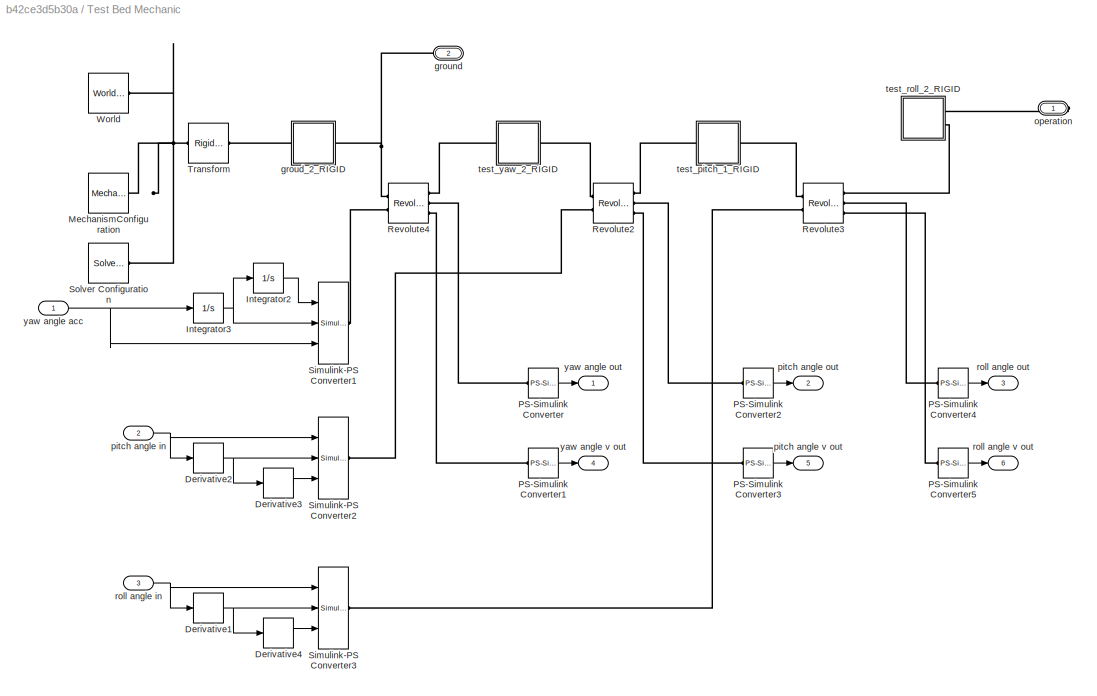
BLOCK [SubSystem] Test Bed Mechanic 
  Ports = [3, 6, 0, 0, 0, 1, 1]
  RequestExecContextInheritance = off
  Variant = off
BLOCK [Derivative] Test Bed Mechanic /Derivative1
BLOCK [Derivative] Test Bed Mechanic /Derivative2
BLOCK [Derivative] Test Bed Mechanic /Derivative3
BLOCK [Derivative] Test Bed Mechanic /Derivative4
BLOCK [Integrator] Test Bed Mechanic /Integrator2
  Ports = [1, 1]
BLOCK [Integrator] Test Bed Mechanic /Integrator3
  Ports = [1, 1]
BLOCK [Reference] Test Bed Mechanic /MechanismConfiguration  REF=sm_lib/Utilities/Mechanism
Configuration
  Ports = [0, 0, 0, 0, 0, 0, 1]
  SourceBlock = sm_lib/Utilities/Mechanism\nConfiguration
  SourceType = Mechanism\nConfiguration
BLOCK [Reference] Test Bed Mechanic /PS-Simulink Converter  REF=nesl_utility/PS-Simulink
Converter
  Ports = [0, 1, 0, 0, 0, 1]
  SourceBlock = nesl_utility/PS-Simulink\nConverter
  SourceType = PS-Simulink\nConverter
BLOCK [Reference] Test Bed Mechanic /PS-Simulink Converter1  REF=nesl_utility/PS-Simulink
Converter
  Ports = [0, 1, 0, 0, 0, 1]
  SourceBlock = nesl_utility/PS-Simulink\nConverter
  SourceType = PS-Simulink\nConverter
BLOCK [Reference] Test Bed Mechanic /PS-Simulink Converter2  REF=nesl_utility/PS-Simulink
Converter
  Ports = [0, 1, 0, 0, 0, 1]
  SourceBlock = nesl_utility/PS-Simulink\nConverter
  SourceType = PS-Simulink\nConverter
BLOCK [Reference] Test Bed Mechanic /PS-Simulink Converter3  REF=nesl_utility/PS-Simulink
Converter
  Ports = [0, 1, 0, 0, 0, 1]
  SourceBlock = nesl_utility/PS-Simulink\nConverter
  SourceType = PS-Simulink\nConverter
BLOCK [Reference] Test Bed Mechanic /PS-Simulink Converter4  REF=nesl_utility/PS-Simulink
Converter
  Ports = [0, 1, 0, 0, 0, 1]
  SourceBlock = nesl_utility/PS-Simulink\nConverter
  SourceType = PS-Simulink\nConverter
BLOCK [Reference] Test Bed Mechanic /PS-Simulink Converter5  REF=nesl_utility/PS-Simulink
Converter
  Ports = [0, 1, 0, 0, 0, 1]
  SourceBlock = nesl_utility/PS-Simulink\nConverter
  SourceType = PS-Simulink\nConverter
BLOCK [Reference] Test Bed Mechanic /Revolute2  REF=sm_lib/Joints/Revolute Joint
  Ports = [0, 0, 0, 0, 0, 2, 3]
  SourceBlock = sm_lib/Joints/Revolute Joint
  SourceType = Revolute Joint
BLOCK [Reference] Test Bed Mechanic /Revolute3  REF=sm_lib/Joints/Revolute Joint
  Ports = [0, 0, 0, 0, 0, 2, 3]
  SourceBlock = sm_lib/Joints/Revolute Joint
  SourceType = Revolute Joint
BLOCK [Reference] Test Bed Mechanic /Revolute4  REF=sm_lib/Joints/Revolute Joint
  Ports = [0, 0, 0, 0, 0, 2, 3]
  SourceBlock = sm_lib/Joints/Revolute Joint
  SourceType = Revolute Joint
BLOCK [Reference] Test Bed Mechanic /Simulink-PS Converter1  REF=nesl_utility/Simulink-PS
Converter
  Ports = [3, 0, 0, 0, 0, 0, 1]
  SourceBlock = nesl_utility/Simulink-PS\nConverter
  SourceType = Simulink-PS\nConverter
BLOCK [Reference] Test Bed Mechanic /Simulink-PS Converter2  REF=nesl_utility/Simulink-PS
Converter
  Ports = [3, 0, 0, 0, 0, 0, 1]
  SourceBlock = nesl_utility/Simulink-PS\nConverter
  SourceType = Simulink-PS\nConverter
BLOCK [Reference] Test Bed Mechanic /Simulink-PS Converter3  REF=nesl_utility/Simulink-PS
Converter
  Ports = [3, 0, 0, 0, 0, 0, 1]
  SourceBlock = nesl_utility/Simulink-PS\nConverter
  SourceType = Simulink-PS\nConverter
BLOCK [Reference] Test Bed Mechanic /Solver Configuration  REF=nesl_utility/Solver
Configuration
  Ports = [0, 0, 0, 0, 0, 0, 1]
  SourceBlock = nesl_utility/Solver\nConfiguration
  SourceType = Solver\nConfiguration
BLOCK [Reference] Test Bed Mechanic /Transform  REF=sm_lib/Frames and
Transforms/Rigid
Transform
  Ports = [0, 0, 0, 0, 0, 1, 1]
  SourceBlock = sm_lib/Frames and\nTransforms/Rigid\nTransform
  SourceType = Rigid\nTransform
BLOCK [Reference] Test Bed Mechanic /World  REF=sm_lib/Frames and
Transforms/World Frame
  Ports = [0, 0, 0, 0, 0, 0, 1]
  SourceBlock = sm_lib/Frames and\nTransforms/World Frame
  SourceType = World Frame
BLOCK [SubSystem] Test Bed Mechanic /groud_2_RIGID
  Ports = [0, 0, 0, 0, 0, 1, 1]
  RequestExecContextInheritance = off
  Variant = off
BLOCK [PMIOPort] Test Bed Mechanic /groud_2_RIGID/F
  Port = 2
  Side = Right
BLOCK [PMIOPort] Test Bed Mechanic /groud_2_RIGID/F1
  Port = 1
  Side = Left
BLOCK [Reference] Test Bed Mechanic /groud_2_RIGID/ReferenceFrame  REF=sm_lib/Frames and
Transforms/Reference
Frame
  Ports = [0, 0, 0, 0, 0, 0, 1]
  SourceBlock = sm_lib/Frames and\nTransforms/Reference\nFrame
  SourceType = Reference\nFrame
BLOCK [Reference] Test Bed Mechanic /groud_2_RIGID/Solid  REF=sm_lib/Body Elements/Solid
  Ports = [0, 0, 0, 0, 0, 0, 1]
  SourceBlock = sm_lib/Body Elements/Solid
  SourceType = Solid
BLOCK [Reference] Test Bed Mechanic /groud_2_RIGID/Transform  REF=sm_lib/Frames and
Transforms/Rigid
Transform
  Ports = [0, 0, 0, 0, 0, 1, 1]
  SourceBlock = sm_lib/Frames and\nTransforms/Rigid\nTransform
  SourceType = Rigid\nTransform
BLOCK [PMIOPort] Test Bed Mechanic /ground 
  Port = 2
  Side = Left
BLOCK [PMIOPort] Test Bed Mechanic /operation
  Port = 1
  Side = Right
BLOCK [Inport] Test Bed Mechanic /pitch angle in
  IconDisplay = Port number
  Port = 2
BLOCK [Outport] Test Bed Mechanic /pitch angle out
  IconDisplay = Port number
  Port = 2
BLOCK [Outport] Test Bed Mechanic /pitch angle v out
  IconDisplay = Port number
  Port = 5
BLOCK [Inport] Test Bed Mechanic /roll angle in
  IconDisplay = Port number
  Port = 3
BLOCK [Outport] Test Bed Mechanic /roll angle out
  IconDisplay = Port number
  Port = 3
BLOCK [Outport] Test Bed Mechanic /roll angle v out
  IconDisplay = Port number
  Port = 6
BLOCK [SubSystem] Test Bed Mechanic /test_pitch_1_RIGID
  Ports = [0, 0, 0, 0, 0, 1, 1]
  RequestExecContextInheritance = off
  Variant = off
BLOCK [PMIOPort] Test Bed Mechanic /test_pitch_1_RIGID/F
  Port = 1
  Side = Left
BLOCK [PMIOPort] Test Bed Mechanic /test_pitch_1_RIGID/F1
  Port = 2
  Side = Right
BLOCK [Reference] Test Bed Mechanic /test_pitch_1_RIGID/ReferenceFrame  REF=sm_lib/Frames and
Transforms/Reference
Frame
  Ports = [0, 0, 0, 0, 0, 0, 1]
  SourceBlock = sm_lib/Frames and\nTransforms/Reference\nFrame
  SourceType = Reference\nFrame
BLOCK [Reference] Test Bed Mechanic /test_pitch_1_RIGID/Solid  REF=sm_lib/Body Elements/Solid
  Ports = [0, 0, 0, 0, 0, 0, 1]
  SourceBlock = sm_lib/Body Elements/Solid
  SourceType = Solid
BLOCK [Reference] Test Bed Mechanic /test_pitch_1_RIGID/Transform  REF=sm_lib/Frames and
Transforms/Rigid
Transform
  Ports = [0, 0, 0, 0, 0, 1, 1]
  SourceBlock = sm_lib/Frames and\nTransforms/Rigid\nTransform
  SourceType = Rigid\nTransform
BLOCK [Reference] Test Bed Mechanic /test_pitch_1_RIGID/Transform1  REF=sm_lib/Frames and
Transforms/Rigid
Transform
  Ports = [0, 0, 0, 0, 0, 1, 1]
  SourceBlock = sm_lib/Frames and\nTransforms/Rigid\nTransform
  SourceType = Rigid\nTransform
BLOCK [SubSystem] Test Bed Mechanic /test_roll_2_RIGID
  Ports = [0, 0, 0, 0, 0, 2]
  RequestExecContextInheritance = off
  Variant = off
BLOCK [PMIOPort] Test Bed Mechanic /test_roll_2_RIGID/F
  Port = 2
  Side = Left
BLOCK [PMIOPort] Test Bed Mechanic /test_roll_2_RIGID/F1
  Port = 1
  Side = Left
BLOCK [Reference] Test Bed Mechanic /test_roll_2_RIGID/ReferenceFrame  REF=sm_lib/Frames and
Transforms/Reference
Frame
  Ports = [0, 0, 0, 0, 0, 0, 1]
  SourceBlock = sm_lib/Frames and\nTransforms/Reference\nFrame
  SourceType = Reference\nFrame
BLOCK [Reference] Test Bed Mechanic /test_roll_2_RIGID/Solid  REF=sm_lib/Body Elements/Solid
  Ports = [0, 0, 0, 0, 0, 0, 1]
  SourceBlock = sm_lib/Body Elements/Solid
  SourceType = Solid
BLOCK [Reference] Test Bed Mechanic /test_roll_2_RIGID/Transform  REF=sm_lib/Frames and
Transforms/Rigid
Transform
  Ports = [0, 0, 0, 0, 0, 1, 1]
  SourceBlock = sm_lib/Frames and\nTransforms/Rigid\nTransform
  SourceType = Rigid\nTransform
BLOCK [Reference] Test Bed Mechanic /test_roll_2_RIGID/Transform1  REF=sm_lib/Frames and
Transforms/Rigid
Transform
  Ports = [0, 0, 0, 0, 0, 1, 1]
  SourceBlock = sm_lib/Frames and\nTransforms/Rigid\nTransform
  SourceType = Rigid\nTransform
BLOCK [SubSystem] Test Bed Mechanic /test_yaw_2_RIGID
  Ports = [0, 0, 0, 0, 0, 1, 1]
  RequestExecContextInheritance = off
  Variant = off
BLOCK [PMIOPort] Test Bed Mechanic /test_yaw_2_RIGID/F
  Port = 2
  Side = Right
BLOCK [PMIOPort] Test Bed Mechanic /test_yaw_2_RIGID/F1
  Port = 1
  Side = Left
BLOCK [Reference] Test Bed Mechanic /test_yaw_2_RIGID/ReferenceFrame  REF=sm_lib/Frames and
Transforms/Reference
Frame
  Ports = [0, 0, 0, 0, 0, 0, 1]
  SourceBlock = sm_lib/Frames and\nTransforms/Reference\nFrame
  SourceType = Reference\nFrame
BLOCK [Reference] Test Bed Mechanic /test_yaw_2_RIGID/Solid  REF=sm_lib/Body Elements/Solid
  Ports = [0, 0, 0, 0, 0, 0, 1]
  SourceBlock = sm_lib/Body Elements/Solid
  SourceType = Solid
BLOCK [Reference] Test Bed Mechanic /test_yaw_2_RIGID/Transform  REF=sm_lib/Frames and
Transforms/Rigid
Transform
  Ports = [0, 0, 0, 0, 0, 1, 1]
  SourceBlock = sm_lib/Frames and\nTransforms/Rigid\nTransform
  SourceType = Rigid\nTransform
BLOCK [Reference] Test Bed Mechanic /test_yaw_2_RIGID/Transform1  REF=sm_lib/Frames and
Transforms/Rigid
Transform
  Ports = [0, 0, 0, 0, 0, 1, 1]
  SourceBlock = sm_lib/Frames and\nTransforms/Rigid\nTransform
  SourceType = Rigid\nTransform
BLOCK [Inport] Test Bed Mechanic /yaw angle acc
  IconDisplay = Port number
BLOCK [Outport] Test Bed Mechanic /yaw angle out
  IconDisplay = Port number
BLOCK [Outport] Test Bed Mechanic /yaw angle v out
  IconDisplay = Port number
  Port = 4
BLOCK [Gain] deg2rad
  Gain = pi/180
  OutDataTypeStr = Inherit: Inherit via internal rule
  ParamDataTypeStr = Inherit: Inherit via internal rule
  SaturateOnIntegerOverflow = off
BLOCK [Constant] pitch init pos
  Value = 0
BLOCK [Gain] rad2deg4
  Gain = 180/pi
  OutDataTypeStr = Inherit: Inherit via internal rule
  ParamDataTypeStr = Inherit: Inherit via internal rule
  SaturateOnIntegerOverflow = off
BLOCK [Constant] roll init pos
  Value = -pi/2
LINE Clock:1 -> Switch:2
LINE Gimbal System/Gimbal Mechanic/Constant1:1 -> Gimbal System/Gimbal Mechanic/Pitch Enc1:2
LINE Gimbal System/Gimbal Mechanic/Constant2:1 -> Gimbal System/Gimbal Mechanic/Pitch Enc:2
LINE Gimbal System/Gimbal Mechanic/Constant4:1 -> Gimbal System/Gimbal Mechanic/Pitch Enc2:2
LINE Gimbal System/Gimbal Mechanic/Demux1:1 -> Gimbal System/Gimbal Mechanic/pitch6:1
LINE Gimbal System/Gimbal Mechanic/Demux1:2 -> Gimbal System/Gimbal Mechanic/pitch7:1
LINE Gimbal System/Gimbal Mechanic/Demux1:3 -> Gimbal System/Gimbal Mechanic/pitch8:1
LINE Gimbal System/Gimbal Mechanic/Demux1:4 -> Gimbal System/Gimbal Mechanic/pitch9:1
NET Gimbal System/Gimbal Mechanic/Demux:1 -> Gimbal System/Gimbal Mechanic/Derivative:1, Gimbal System/Gimbal Mechanic/pitch2:1, Gimbal System/Gimbal Mechanic/rad2deg3:1, Gimbal System/Gimbal Mechanic/rad2deg7:1, Gimbal System/Gimbal Mechanic/rad2deg:1
NET Gimbal System/Gimbal Mechanic/Demux:2 -> Gimbal System/Gimbal Mechanic/Derivative1:1, Gimbal System/Gimbal Mechanic/rad2deg1:1, Gimbal System/Gimbal Mechanic/rad2deg4:1, Gimbal System/Gimbal Mechanic/rad2deg9:1
NET Gimbal System/Gimbal Mechanic/Demux:3 -> Gimbal System/Gimbal Mechanic/Derivative2:1, Gimbal System/Gimbal Mechanic/Sum2:1, Gimbal System/Gimbal Mechanic/rad2deg2:1, Gimbal System/Gimbal Mechanic/rad2deg5:1
LINE Gimbal System/Gimbal Mechanic/Derivative1:1 -> Gimbal System/Gimbal Mechanic/rad2deg8:1
LINE Gimbal System/Gimbal Mechanic/Derivative2:1 -> Gimbal System/Gimbal Mechanic/Sum3:1
LINE Gimbal System/Gimbal Mechanic/Derivative:1 -> Gimbal System/Gimbal Mechanic/rad2deg6:1
NET Gimbal System/Gimbal Mechanic/Direction Cosine Matrix to Rotation Angles:1 -> Gimbal System/Gimbal Mechanic/Demux:1, Gimbal System/Gimbal Mechanic/pitch5:1
NET Gimbal System/Gimbal Mechanic/PS-Simulink Converter1:1 -> Gimbal System/Gimbal Mechanic/add_Ff:2, Gimbal System/Gimbal Mechanic/motor v yaw (rad//s):1
LINE Gimbal System/Gimbal Mechanic/PS-Simulink Converter2:1 -> Gimbal System/Gimbal Mechanic/Pitch Enc1:1
NET Gimbal System/Gimbal Mechanic/PS-Simulink Converter3:1 -> Gimbal System/Gimbal Mechanic/add_Ff1:2, Gimbal System/Gimbal Mechanic/motor v roll (rad//s):1
LINE Gimbal System/Gimbal Mechanic/PS-Simulink Converter4:1 -> Gimbal System/Gimbal Mechanic/Pitch Enc:1
NET Gimbal System/Gimbal Mechanic/PS-Simulink Converter5:1 -> Gimbal System/Gimbal Mechanic/add_Ff2:2, Gimbal System/Gimbal Mechanic/motor v pitch(rad//s):1
NET Gimbal System/Gimbal Mechanic/PS-Simulink Converter6:1 -> Gimbal System/Gimbal Mechanic/Direction Cosine Matrix to Rotation Angles:1, Gimbal System/Gimbal Mechanic/pitch3:1
NET Gimbal System/Gimbal Mechanic/PS-Simulink Converter7:1 -> Gimbal System/Gimbal Mechanic/Demux1:1, Gimbal System/Gimbal Mechanic/pitch4:1
LINE Gimbal System/Gimbal Mechanic/PS-Simulink Converter:1 -> Gimbal System/Gimbal Mechanic/Pitch Enc2:1
NET Gimbal System/Gimbal Mechanic/Pitch Enc1:1 -> Gimbal System/Gimbal Mechanic/motor roll (rad):1, Gimbal System/Gimbal Mechanic/pitch10:1
NET Gimbal System/Gimbal Mechanic/Pitch Enc2:1 -> Gimbal System/Gimbal Mechanic/motor yaw (rad):1, Gimbal System/Gimbal Mechanic/pitch11:1
NET Gimbal System/Gimbal Mechanic/Pitch Enc:1 -> Gimbal System/Gimbal Mechanic/motor pitch (rad):1, Gimbal System/Gimbal Mechanic/pitch12:1
LINE Gimbal System/Gimbal Mechanic/Sum1:1 -> Gimbal System/Gimbal Mechanic/camera_yaw_rad:1
LINE Gimbal System/Gimbal Mechanic/Sum2:1 -> Gimbal System/Gimbal Mechanic/camera_roll_rad:1
LINE Gimbal System/Gimbal Mechanic/Sum3:1 -> Gimbal System/Gimbal Mechanic/camera_roll_vel_rad:1
LINE Gimbal System/Gimbal Mechanic/Sum4:1 -> Gimbal System/Gimbal Mechanic/camera_yaw_vel_rad:1
LINE Gimbal System/Gimbal Mechanic/Sum5:1 -> Gimbal System/Gimbal Mechanic/camera_pitch_vel_rad:1
LINE Gimbal System/Gimbal Mechanic/Sum:1 -> Gimbal System/Gimbal Mechanic/camera_pitch_rad:1
LINE Gimbal System/Gimbal Mechanic/T pitch (N*m):1 -> Gimbal System/Gimbal Mechanic/i2f1:1
LINE Gimbal System/Gimbal Mechanic/T roll (N*m):1 -> Gimbal System/Gimbal Mechanic/i2f4:1
LINE Gimbal System/Gimbal Mechanic/T yaw (N*m):1 -> Gimbal System/Gimbal Mechanic/i2f3:1
LINE Gimbal System/Gimbal Mechanic/add_Ff1:1 -> Gimbal System/Gimbal Mechanic/Simulink-PS Converter4:1
NET Gimbal System/Gimbal Mechanic/add_Ff2:1 -> Gimbal System/Gimbal Mechanic/Scope:1, Gimbal System/Gimbal Mechanic/Simulink-PS Converter5:1
LINE Gimbal System/Gimbal Mechanic/add_Ff:1 -> Gimbal System/Gimbal Mechanic/Simulink-PS Converter3:1
LINE Gimbal System/Gimbal Mechanic/angle noise1:1 -> Gimbal System/Gimbal Mechanic/rad2deg11:1
LINE Gimbal System/Gimbal Mechanic/angle noise:1 -> Gimbal System/Gimbal Mechanic/rad2deg10:1
LINE Gimbal System/Gimbal Mechanic/i2f1:1 -> Gimbal System/Gimbal Mechanic/add_Ff2:1
LINE Gimbal System/Gimbal Mechanic/i2f3:1 -> Gimbal System/Gimbal Mechanic/add_Ff:1
LINE Gimbal System/Gimbal Mechanic/i2f4:1 -> Gimbal System/Gimbal Mechanic/add_Ff1:1
NET Gimbal System/Gimbal Mechanic/rad2deg10:1 -> Gimbal System/Gimbal Mechanic/Sum1:2, Gimbal System/Gimbal Mechanic/Sum2:2, Gimbal System/Gimbal Mechanic/Sum:2
NET Gimbal System/Gimbal Mechanic/rad2deg11:1 -> Gimbal System/Gimbal Mechanic/Sum3:2, Gimbal System/Gimbal Mechanic/Sum4:2, Gimbal System/Gimbal Mechanic/Sum5:2
LINE Gimbal System/Gimbal Mechanic/rad2deg1:1 -> Gimbal System/Gimbal Mechanic/yaw:1
LINE Gimbal System/Gimbal Mechanic/rad2deg2:1 -> Gimbal System/Gimbal Mechanic/roll:1
LINE Gimbal System/Gimbal Mechanic/rad2deg3:1 -> Gimbal System/Gimbal Mechanic/pitch1:1
LINE Gimbal System/Gimbal Mechanic/rad2deg4:1 -> Gimbal System/Gimbal Mechanic/yaw1:1
LINE Gimbal System/Gimbal Mechanic/rad2deg5:1 -> Gimbal System/Gimbal Mechanic/roll1:1
LINE Gimbal System/Gimbal Mechanic/rad2deg6:1 -> Gimbal System/Gimbal Mechanic/Sum5:1
LINE Gimbal System/Gimbal Mechanic/rad2deg7:1 -> Gimbal System/Gimbal Mechanic/Sum:1
LINE Gimbal System/Gimbal Mechanic/rad2deg8:1 -> Gimbal System/Gimbal Mechanic/Sum4:1
LINE Gimbal System/Gimbal Mechanic/rad2deg9:1 -> Gimbal System/Gimbal Mechanic/Sum1:1
LINE Gimbal System/Gimbal Mechanic/rad2deg:1 -> Gimbal System/Gimbal Mechanic/pitch:1
NET Gimbal System/Gimbal Mechanic/yaw dynamic friction:1 -> Gimbal System/Gimbal Mechanic/add_Ff1:3, Gimbal System/Gimbal Mechanic/add_Ff2:3, Gimbal System/Gimbal Mechanic/add_Ff:3
NET Gimbal System/Gimbal Mechanic/yaw static friction:1 -> Gimbal System/Gimbal Mechanic/add_Ff1:4, Gimbal System/Gimbal Mechanic/add_Ff2:4, Gimbal System/Gimbal Mechanic/add_Ff:4
NET Gimbal System/Gimbal Mechanic:1 -> Gimbal System/PID Controller:7, Gimbal System/rad2deg3:1
LINE Gimbal System/Gimbal Mechanic:10 -> Gimbal System/PID Controller:4
LINE Gimbal System/Gimbal Mechanic:11 -> Gimbal System/PID Controller:5
LINE Gimbal System/Gimbal Mechanic:12 -> Gimbal System/PID Controller:6
LINE Gimbal System/Gimbal Mechanic:7 -> Gimbal System/rad2deg5:1
NET Gimbal System/Gimbal Mechanic:8 -> Gimbal System/PID Controller:8, Gimbal System/rad2deg1:1, Gimbal System/rad2deg4:1
NET Gimbal System/Gimbal Mechanic:9 -> Gimbal System/PID Controller:9, Gimbal System/rad2deg2:1
LINE Gimbal System/PID Controller/PID Controller1:1 -> Gimbal System/PID Controller/roll_out:1
LINE Gimbal System/PID Controller/PID Controller2:1 -> Gimbal System/PID Controller/pitch_out:1
LINE Gimbal System/PID Controller/PID Controller3:1 -> Gimbal System/PID Controller/Sum8:1
LINE Gimbal System/PID Controller/PID Controller4:1 -> Gimbal System/PID Controller/Sum7:1
LINE Gimbal System/PID Controller/PID Controller5:1 -> Gimbal System/PID Controller/Sum6:1
LINE Gimbal System/PID Controller/PID Controller:1 -> Gimbal System/PID Controller/yaw_out:1
NET Gimbal System/PID Controller/Sum10:1 -> Gimbal System/PID Controller/PID Controller4:1, Gimbal System/PID Controller/Scope:2
NET Gimbal System/PID Controller/Sum11:1 -> Gimbal System/PID Controller/PID Controller5:1, Gimbal System/PID Controller/Scope:1
LINE Gimbal System/PID Controller/Sum6:1 -> Gimbal System/PID Controller/PID Controller:1
LINE Gimbal System/PID Controller/Sum7:1 -> Gimbal System/PID Controller/PID Controller1:1
LINE Gimbal System/PID Controller/Sum8:1 -> Gimbal System/PID Controller/PID Controller2:1
NET Gimbal System/PID Controller/Sum9:1 -> Gimbal System/PID Controller/PID Controller3:1, Gimbal System/PID Controller/Scope:3
LINE Gimbal System/PID Controller/pitch_fb:1 -> Gimbal System/PID Controller/Sum9:2
LINE Gimbal System/PID Controller/pitch_in:1 -> Gimbal System/PID Controller/rad2deg5:1
LINE Gimbal System/PID Controller/pitch_vel_fb:1 -> Gimbal System/PID Controller/Sum8:2
LINE Gimbal System/PID Controller/rad2deg3:1 -> Gimbal System/PID Controller/Sum11:1
LINE Gimbal System/PID Controller/rad2deg4:1 -> Gimbal System/PID Controller/Sum10:1
LINE Gimbal System/PID Controller/rad2deg5:1 -> Gimbal System/PID Controller/Sum9:1
LINE Gimbal System/PID Controller/roll_fb:1 -> Gimbal System/PID Controller/Sum10:2
LINE Gimbal System/PID Controller/roll_in:1 -> Gimbal System/PID Controller/rad2deg4:1
LINE Gimbal System/PID Controller/roll_vel_fb:1 -> Gimbal System/PID Controller/Sum7:2
LINE Gimbal System/PID Controller/yaw_fb:1 -> Gimbal System/PID Controller/Sum11:2
LINE Gimbal System/PID Controller/yaw_in:1 -> Gimbal System/PID Controller/rad2deg3:1
LINE Gimbal System/PID Controller/yaw_vel_fb:1 -> Gimbal System/PID Controller/Sum6:2
LINE Gimbal System/PID Controller:1 -> Gimbal System/Gimbal Mechanic:1
LINE Gimbal System/PID Controller:2 -> Gimbal System/Gimbal Mechanic:2
LINE Gimbal System/PID Controller:3 -> Gimbal System/Gimbal Mechanic:3
LINE Gimbal System/Sum12:1 -> Gimbal System/PID Controller:3
LINE Gimbal System/Sum13:1 -> Gimbal System/PID Controller:2
LINE Gimbal System/Sum14:1 -> Gimbal System/PID Controller:1
LINE Gimbal System/pitch init:1 -> Gimbal System/Sum12:1
LINE Gimbal System/pitch set point:1 -> Gimbal System/Sum12:2
LINE Gimbal System/rad2deg1:1 -> Gimbal System/roll:1
LINE Gimbal System/rad2deg2:1 -> Gimbal System/pitch:1
NET Gimbal System/rad2deg3:1 -> Gimbal System/roll2:1, Gimbal System/roll5:1
LINE Gimbal System/rad2deg4:1 -> Gimbal System/roll3:1
NET Gimbal System/rad2deg5:1 -> Gimbal System/roll4:1, Gimbal System/roll5:2
LINE Gimbal System/roll init:1 -> Gimbal System/Sum13:1
LINE Gimbal System/roll set point:1 -> Gimbal System/Sum13:2
LINE Gimbal System/yaw init:1 -> Gimbal System/Sum14:1
LINE Gimbal System/yaw set point:1 -> Gimbal System/Sum14:2
LINE Manual Switch:1 -> deg2rad:1
LINE Ramp:1 -> Saturation:1
LINE Saturation:1 -> Manual Switch:1
LINE Signal Builder1:1 -> Switch:3
LINE Signal Builder1:2 -> Switch:1
LINE Sine Wave:1 -> Manual Switch:2
LINE Sum1:1 -> Test Bed Mechanic :2
LINE Sum2:1 -> Test Bed Mechanic :3
LINE Switch:1 -> Gain:1
NET Test Bed Mechanic /Derivative1:1 -> Test Bed Mechanic /Derivative4:1, Test Bed Mechanic /Simulink-PS Converter3:2
NET Test Bed Mechanic /Derivative2:1 -> Test Bed Mechanic /Derivative3:1, Test Bed Mechanic /Simulink-PS Converter2:2
LINE Test Bed Mechanic /Derivative3:1 -> Test Bed Mechanic /Simulink-PS Converter2:3
LINE Test Bed Mechanic /Derivative4:1 -> Test Bed Mechanic /Simulink-PS Converter3:3
LINE Test Bed Mechanic /Integrator2:1 -> Test Bed Mechanic /Simulink-PS Converter1:1
NET Test Bed Mechanic /Integrator3:1 -> Test Bed Mechanic /Integrator2:1, Test Bed Mechanic /Simulink-PS Converter1:2
LINE Test Bed Mechanic /PS-Simulink Converter1:1 -> Test Bed Mechanic /yaw angle v out:1
LINE Test Bed Mechanic /PS-Simulink Converter2:1 -> Test Bed Mechanic /pitch angle out:1
LINE Test Bed Mechanic /PS-Simulink Converter3:1 -> Test Bed Mechanic /pitch angle v out:1
LINE Test Bed Mechanic /PS-Simulink Converter4:1 -> Test Bed Mechanic /roll angle out:1
LINE Test Bed Mechanic /PS-Simulink Converter5:1 -> Test Bed Mechanic /roll angle v out:1
LINE Test Bed Mechanic /PS-Simulink Converter:1 -> Test Bed Mechanic /yaw angle out:1
NET Test Bed Mechanic /pitch angle in:1 -> Test Bed Mechanic /Derivative2:1, Test Bed Mechanic /Simulink-PS Converter2:1
NET Test Bed Mechanic /roll angle in:1 -> Test Bed Mechanic /Derivative1:1, Test Bed Mechanic /Simulink-PS Converter3:1
NET Test Bed Mechanic /yaw angle acc:1 -> Test Bed Mechanic /Integrator3:1, Test Bed Mechanic /Simulink-PS Converter1:3
LINE Test Bed Mechanic :1 -> rad2deg4:1
LINE pitch init pos:1 -> Sum1:1
LINE rad2deg4:1 -> Scope:1
LINE roll init pos:1 -> Sum2:1
PLINE Gimbal System/Conn1:RConn1 -- Gimbal System/Gimbal Mechanic:RConn1
PLINE Gimbal System/Conn2:RConn1 -- Gimbal System/Gimbal Mechanic:LConn1
PLINE Gimbal System/Gimbal Mechanic/Camera fram:RConn1 -- Gimbal System/Gimbal Mechanic/Transform Sensor:LConn1
PLINE Gimbal System/Gimbal Mechanic/Conn1:RConn1 -- Gimbal System/Gimbal Mechanic/groud_3_RIGID:LConn1
PLINE Gimbal System/Gimbal Mechanic/PS-Simulink Converter1:LConn1 -- Gimbal System/Gimbal Mechanic/Revolute:RConn3
PLINE Gimbal System/Gimbal Mechanic/PS-Simulink Converter2:LConn1 -- Gimbal System/Gimbal Mechanic/Revolute1:RConn2
PLINE Gimbal System/Gimbal Mechanic/PS-Simulink Converter3:LConn1 -- Gimbal System/Gimbal Mechanic/Revolute1:RConn3
PLINE Gimbal System/Gimbal Mechanic/PS-Simulink Converter4:LConn1 -- Gimbal System/Gimbal Mechanic/Revolute5:RConn2
PLINE Gimbal System/Gimbal Mechanic/PS-Simulink Converter5:LConn1 -- Gimbal System/Gimbal Mechanic/Revolute5:RConn3
PLINE Gimbal System/Gimbal Mechanic/PS-Simulink Converter6:LConn1 -- Gimbal System/Gimbal Mechanic/Transform Sensor:RConn4
PLINE Gimbal System/Gimbal Mechanic/PS-Simulink Converter7:LConn1 -- Gimbal System/Gimbal Mechanic/Transform Sensor:RConn3
PLINE Gimbal System/Gimbal Mechanic/PS-Simulink Converter:LConn1 -- Gimbal System/Gimbal Mechanic/Revolute:RConn2
PLINE Gimbal System/Gimbal Mechanic/Revolute1:LConn1 -- Gimbal System/Gimbal Mechanic/yaw_1_RIGID:RConn1
PLINE Gimbal System/Gimbal Mechanic/Revolute1:LConn2 -- Gimbal System/Gimbal Mechanic/Simulink-PS Converter4:RConn1
PLINE Gimbal System/Gimbal Mechanic/Revolute1:RConn1 -- Gimbal System/Gimbal Mechanic/roll_1_RIGID:LConn1
PLINE Gimbal System/Gimbal Mechanic/Revolute5:LConn1 -- Gimbal System/Gimbal Mechanic/roll_1_RIGID:RConn1
PLINE Gimbal System/Gimbal Mechanic/Revolute5:LConn2 -- Gimbal System/Gimbal Mechanic/Simulink-PS Converter5:RConn1
PNET net1: Gimbal System/Gimbal Mechanic/Revolute5:RConn1 -- Gimbal System/Gimbal Mechanic/Transform Sensor:RConn1 -- Gimbal System/Gimbal Mechanic/pitch_1_RIGID:LConn1
PLINE Gimbal System/Gimbal Mechanic/Revolute:LConn1 -- Gimbal System/Gimbal Mechanic/groud_3_RIGID:RConn1
PLINE Gimbal System/Gimbal Mechanic/Revolute:LConn2 -- Gimbal System/Gimbal Mechanic/Simulink-PS Converter3:RConn1
PLINE Gimbal System/Gimbal Mechanic/Revolute:RConn1 -- Gimbal System/Gimbal Mechanic/yaw_1_RIGID:LConn1
PLINE Gimbal System/Gimbal Mechanic/groud_3_RIGID/F1:RConn1 -- Gimbal System/Gimbal Mechanic/groud_3_RIGID/Transform1:RConn1
PLINE Gimbal System/Gimbal Mechanic/groud_3_RIGID/F:RConn1 -- Gimbal System/Gimbal Mechanic/groud_3_RIGID/Transform:RConn1
PNET net2: Gimbal System/Gimbal Mechanic/groud_3_RIGID/ReferenceFrame:RConn1 -- Gimbal System/Gimbal Mechanic/groud_3_RIGID/Solid:RConn1 -- Gimbal System/Gimbal Mechanic/groud_3_RIGID/Transform1:LConn1 -- Gimbal System/Gimbal Mechanic/groud_3_RIGID/Transform:LConn1
PLINE Gimbal System/Gimbal Mechanic/load_1_RIGID/F:RConn1 -- Gimbal System/Gimbal Mechanic/load_1_RIGID/Transform:RConn1
PNET net3: Gimbal System/Gimbal Mechanic/load_1_RIGID/ReferenceFrame:RConn1 -- Gimbal System/Gimbal Mechanic/load_1_RIGID/Solid:RConn1 -- Gimbal System/Gimbal Mechanic/load_1_RIGID/Transform:LConn1
PLINE Gimbal System/Gimbal Mechanic/load_1_RIGID:LConn1 -- Gimbal System/Gimbal Mechanic/pitch_1_RIGID:LConn2
PLINE Gimbal System/Gimbal Mechanic/pitch_1_RIGID/F1:RConn1 -- Gimbal System/Gimbal Mechanic/pitch_1_RIGID/Transform1:RConn1
PLINE Gimbal System/Gimbal Mechanic/pitch_1_RIGID/F:RConn1 -- Gimbal System/Gimbal Mechanic/pitch_1_RIGID/Transform:RConn1
PNET net4: Gimbal System/Gimbal Mechanic/pitch_1_RIGID/ReferenceFrame:RConn1 -- Gimbal System/Gimbal Mechanic/pitch_1_RIGID/Solid:RConn1 -- Gimbal System/Gimbal Mechanic/pitch_1_RIGID/Transform1:LConn1 -- Gimbal System/Gimbal Mechanic/pitch_1_RIGID/Transform:LConn1
PLINE Gimbal System/Gimbal Mechanic/roll_1_RIGID/F1:RConn1 -- Gimbal System/Gimbal Mechanic/roll_1_RIGID/Transform1:RConn1
PLINE Gimbal System/Gimbal Mechanic/roll_1_RIGID/F:RConn1 -- Gimbal System/Gimbal Mechanic/roll_1_RIGID/Transform:RConn1
PNET net5: Gimbal System/Gimbal Mechanic/roll_1_RIGID/ReferenceFrame:RConn1 -- Gimbal System/Gimbal Mechanic/roll_1_RIGID/Solid:RConn1 -- Gimbal System/Gimbal Mechanic/roll_1_RIGID/Transform1:LConn1 -- Gimbal System/Gimbal Mechanic/roll_1_RIGID/Transform:LConn1
PLINE Gimbal System/Gimbal Mechanic/yaw_1_RIGID/F1:RConn1 -- Gimbal System/Gimbal Mechanic/yaw_1_RIGID/Transform1:RConn1
PLINE Gimbal System/Gimbal Mechanic/yaw_1_RIGID/F:RConn1 -- Gimbal System/Gimbal Mechanic/yaw_1_RIGID/Transform:RConn1
PNET net6: Gimbal System/Gimbal Mechanic/yaw_1_RIGID/ReferenceFrame:RConn1 -- Gimbal System/Gimbal Mechanic/yaw_1_RIGID/Solid:RConn1 -- Gimbal System/Gimbal Mechanic/yaw_1_RIGID/Transform1:LConn1 -- Gimbal System/Gimbal Mechanic/yaw_1_RIGID/Transform:LConn1
PLINE Gimbal System:LConn1 -- Test Bed Mechanic :RConn1
PLINE Gimbal System:RConn1 -- Test Bed Mechanic :LConn1
PNET net7: Test Bed Mechanic /MechanismConfiguration:RConn1 -- Test Bed Mechanic /Solver Configuration:RConn1 -- Test Bed Mechanic /Transform:LConn1 -- Test Bed Mechanic /World:RConn1
PLINE Test Bed Mechanic /PS-Simulink Converter1:LConn1 -- Test Bed Mechanic /Revolute4:RConn3
PLINE Test Bed Mechanic /PS-Simulink Converter2:LConn1 -- Test Bed Mechanic /Revolute2:RConn2
PLINE Test Bed Mechanic /PS-Simulink Converter3:LConn1 -- Test Bed Mechanic /Revolute2:RConn3
PLINE Test Bed Mechanic /PS-Simulink Converter4:LConn1 -- Test Bed Mechanic /Revolute3:RConn2
PLINE Test Bed Mechanic /PS-Simulink Converter5:LConn1 -- Test Bed Mechanic /Revolute3:RConn3
PLINE Test Bed Mechanic /PS-Simulink Converter:LConn1 -- Test Bed Mechanic /Revolute4:RConn2
PLINE Test Bed Mechanic /Revolute2:LConn1 -- Test Bed Mechanic /test_yaw_2_RIGID:RConn1
PLINE Test Bed Mechanic /Revolute2:LConn2 -- Test Bed Mechanic /Simulink-PS Converter2:RConn1
PLINE Test Bed Mechanic /Revolute2:RConn1 -- Test Bed Mechanic /test_pitch_1_RIGID:LConn1
PLINE Test Bed Mechanic /Revolute3:LConn1 -- Test Bed Mechanic /test_pitch_1_RIGID:RConn1
PLINE Test Bed Mechanic /Revolute3:LConn2 -- Test Bed Mechanic /Simulink-PS Converter3:RConn1
PLINE Test Bed Mechanic /Revolute3:RConn1 -- Test Bed Mechanic /test_roll_2_RIGID:LConn2
PNET net8: Test Bed Mechanic /Revolute4:LConn1 -- Test Bed Mechanic /groud_2_RIGID:RConn1 -- Test Bed Mechanic /ground :RConn1
PLINE Test Bed Mechanic /Revolute4:LConn2 -- Test Bed Mechanic /Simulink-PS Converter1:RConn1
PLINE Test Bed Mechanic /Revolute4:RConn1 -- Test Bed Mechanic /test_yaw_2_RIGID:LConn1
PLINE Test Bed Mechanic /Transform:RConn1 -- Test Bed Mechanic /groud_2_RIGID:LConn1
PNET net9: Test Bed Mechanic /groud_2_RIGID/F1:RConn1 -- Test Bed Mechanic /groud_2_RIGID/ReferenceFrame:RConn1 -- Test Bed Mechanic /groud_2_RIGID/Solid:RConn1 -- Test Bed Mechanic /groud_2_RIGID/Transform:LConn1
PLINE Test Bed Mechanic /groud_2_RIGID/F:RConn1 -- Test Bed Mechanic /groud_2_RIGID/Transform:RConn1
PLINE Test Bed Mechanic /operation:RConn1 -- Test Bed Mechanic /test_roll_2_RIGID:LConn1
PLINE Test Bed Mechanic /test_pitch_1_RIGID/F1:RConn1 -- Test Bed Mechanic /test_pitch_1_RIGID/Transform1:RConn1
PLINE Test Bed Mechanic /test_pitch_1_RIGID/F:RConn1 -- Test Bed Mechanic /test_pitch_1_RIGID/Transform:RConn1
PNET net10: Test Bed Mechanic /test_pitch_1_RIGID/ReferenceFrame:RConn1 -- Test Bed Mechanic /test_pitch_1_RIGID/Solid:RConn1 -- Test Bed Mechanic /test_pitch_1_RIGID/Transform1:LConn1 -- Test Bed Mechanic /test_pitch_1_RIGID/Transform:LConn1
PLINE Test Bed Mechanic /test_roll_2_RIGID/F1:RConn1 -- Test Bed Mechanic /test_roll_2_RIGID/Transform1:RConn1
PLINE Test Bed Mechanic /test_roll_2_RIGID/F:RConn1 -- Test Bed Mechanic /test_roll_2_RIGID/Transform:RConn1
PNET net11: Test Bed Mechanic /test_roll_2_RIGID/ReferenceFrame:RConn1 -- Test Bed Mechanic /test_roll_2_RIGID/Solid:RConn1 -- Test Bed Mechanic /test_roll_2_RIGID/Transform1:LConn1 -- Test Bed Mechanic /test_roll_2_RIGID/Transform:LConn1
PLINE Test Bed Mechanic /test_yaw_2_RIGID/F1:RConn1 -- Test Bed Mechanic /test_yaw_2_RIGID/Transform1:RConn1
PLINE Test Bed Mechanic /test_yaw_2_RIGID/F:RConn1 -- Test Bed Mechanic /test_yaw_2_RIGID/Transform:RConn1
PNET net12: Test Bed Mechanic /test_yaw_2_RIGID/ReferenceFrame:RConn1 -- Test Bed Mechanic /test_yaw_2_RIGID/Solid:RConn1 -- Test Bed Mechanic /test_yaw_2_RIGID/Transform1:LConn1 -- Test Bed Mechanic /test_yaw_2_RIGID/Transform:LConn1
note: NET lines group one-source signal fan-out (src -> all destinations, sorted); 1:1 wires keep LINE; PNET lines group multi-terminal physical nets as a canonical sorted terminal list (undirected conserving connections); 2-terminal nets keep the pairwise PLINE form
CHART Gimbal System/Gimbal Mechanic/add_Ff1 states=1 transitions=1
  STATE_LABEL 'eML_blk_kernel()'
  STATE_LABEL 'SCRIPT:\nfunction y = add_friction(t, w, fd, fs)\n% comput output torque from input torque and friction\n% y: output torque\n% t: input torque\n% w: angle speed\n% fd: dynamic friction\n% fs: static friction\n\nFf = 0;\nif(w>0)\n    Ff = -fd;\nelseif(w<0)\n    Ff = fd;\nelse\n    if(abs(t)<=fs)\n        Ff = -t;\n    else\n        Ff = -sign(t)*fs;\n    end\nend\n\ny = t + Ff;\n'  <repeated x3 — deduplicated; at blocks: add_Ff1, add_Ff, add_Ff2>
CHART Gimbal System/Gimbal Mechanic/add_Ff states=1 transitions=1
  STATE_LABEL 'eML_blk_kernel()'
CHART Gimbal System/Gimbal Mechanic/add_Ff2 states=1 transitions=1
  STATE_LABEL 'eML_blk_kernel()'
CHART Gimbal System/Gimbal Mechanic/Pitch Enc states=1 transitions=1
  STATE_LABEL 'eML_blk_kernel()'
  STATE_LABEL 'SCRIPT:\nfunction y = enc(angle, bias)\n%#codegen\nwhile angle>pi\n    angle = angle - 2*pi;\nend\nwhile angle<-pi\n    angle = angle + 2*pi;\nend\nangle = angle + bias;\nif angle>pi\n    angle = angle - 2*pi;\nend\nif angle<-pi\n    angle = angle + 2*pi;\nend\ny = angle;\n'  <repeated x3 — deduplicated; at blocks: Pitch Enc, Pitch Enc1, Pitch Enc2>
CHART Gimbal System/Gimbal Mechanic/Pitch Enc1 states=1 transitions=1
  STATE_LABEL 'eML_blk_kernel()'
CHART Gimbal System/Gimbal Mechanic/Pitch Enc2 states=1 transitions=1
  STATE_LABEL 'eML_blk_kernel()'
